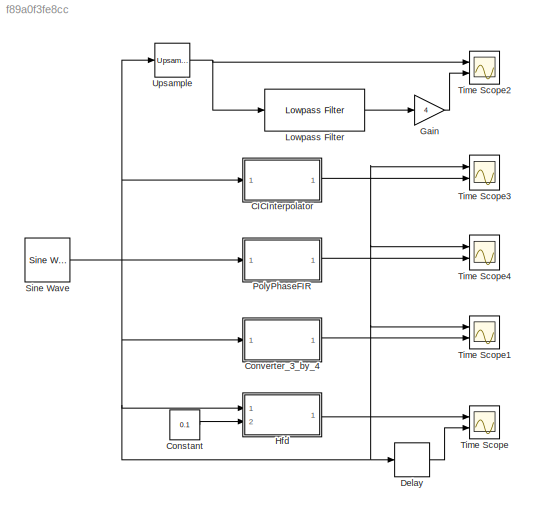
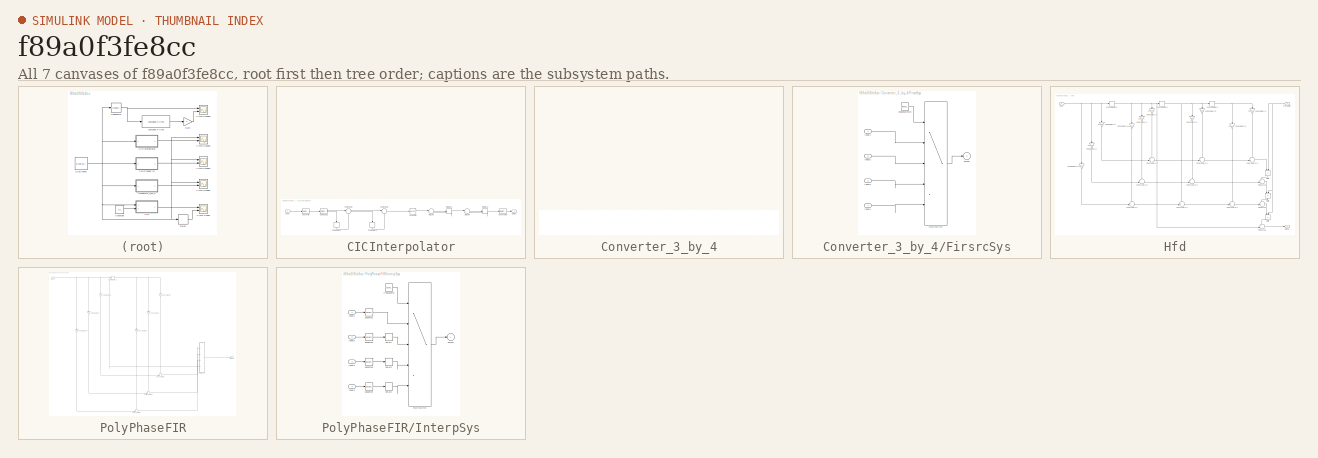
[diagram: thumbnail index - all 7 canvases of the model, root first then tree order]
MODEL slx_f89a0f3fe8cc
KIND model
CONFIG AbsTol = auto
CONFIG EnableMultiTasking = off
CONFIG FixedStep = auto
CONFIG MaxStep = auto
CONFIG MinStep = auto
CONFIG RelTol = 1e-3
CONFIG SampleTimeConstraint = Unconstrained
CONFIG Solver = VariableStepAuto
CONFIG SolverName = VariableStepAuto
CONFIG StartTime = 0.0
CONFIG StopTime = 5e-2
BLOCK [SubSystem] CICInterpolator
  ErrorFcn = dspFilterRealizedInBasicElemsAlgLoopErrFcnCallback
  Ports = [1, 1]
  RequestExecContextInheritance = off
  Tag = FilterWizardSubSystem
  UserDataPersistent = on
BLOCK [DataTypeConversion] CICInterpolator/CombCast2
  OutDataTypeStr = fixdt(1,17,15)
  RndMeth = Floor
  SaturateOnIntegerOverflow = off
BLOCK [Delay] CICInterpolator/CombDelay2
  DelayLength = 1
  InitialCondition = 0
  InputPortMap = u0
  NameLocation = right
  Ports = [1, 1]
BLOCK [Delay] CICInterpolator/CombDelay3
  DelayLength = 1
  InitialCondition = 0
  InputPortMap = u0
  NameLocation = right
  Ports = [1, 1]
BLOCK [Sum] CICInterpolator/CombSum2
  AccumDataTypeStr = fixdt(1,17,15)
  Inputs = |+-
  OutDataTypeStr = fixdt(1,17,15)
  Ports = [2, 1]
BLOCK [Sum] CICInterpolator/CombSum3
  AccumDataTypeStr = fixdt(1,17,15)
  Inputs = |+-
  OutDataTypeStr = fixdt(1,17,15)
  Ports = [2, 1]
BLOCK [DataTypeConversion] CICInterpolator/ConvertIn
  OutDataTypeStr = fixdt(1,16,15)
  RndMeth = Nearest
BLOCK [DataTypeConversion] CICInterpolator/ConvertOut
  OutDataTypeStr = fixdt(1,18,15)
  RndMeth = Floor
  SaturateOnIntegerOverflow = off
BLOCK [Inport] CICInterpolator/Input
BLOCK [Delay] CICInterpolator/IntDelay5
  DelayLength = 1
  InitialCondition = 0
  InputPortMap = u0
  Ports = [1, 1]
BLOCK [Delay] CICInterpolator/IntDelay6
  DelayLength = 1
  InitialCondition = 0
  InputPortMap = u0
  Ports = [1, 1]
BLOCK [Sum] CICInterpolator/IntSum5
  AccumDataTypeStr = fixdt(1,17,15)
  Inputs = |++
  OutDataTypeStr = fixdt(1,17,15)
  Ports = [2, 1]
BLOCK [Sum] CICInterpolator/IntSum6
  AccumDataTypeStr = fixdt(1,18,15)
  Inputs = |++
  OutDataTypeStr = fixdt(1,18,15)
  Ports = [2, 1]
BLOCK [Outport] CICInterpolator/Output
BLOCK [Reference] CICInterpolator/Up Sample  REF=dspsigops/Upsample
  Ports = [1, 1]
  SourceBlock = dspsigops/Upsample
  SourceProductBaseCode = DS
  SourceType = Upsample
  UserDataPersistent = on
BLOCK [Constant] Constant
  Value = 0.1
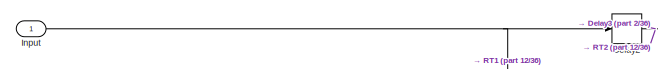
[diagram: Converter_3_by_4 - part 1/36, top left region]
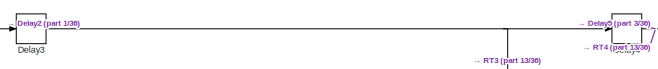
[diagram: Converter_3_by_4 - part 2/36, top left region]
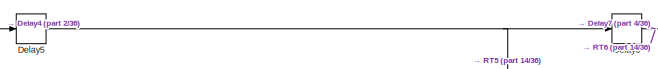
[diagram: Converter_3_by_4 - part 3/36, top left region]
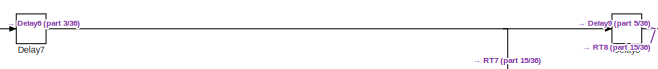
[diagram: Converter_3_by_4 - part 4/36, top left region]
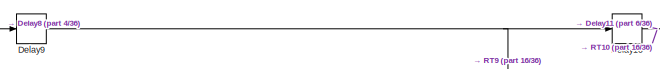
[diagram: Converter_3_by_4 - part 5/36, top center region]
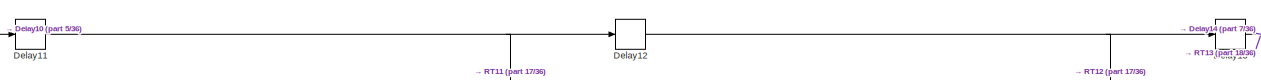
[diagram: Converter_3_by_4 - part 6/36, top center region]
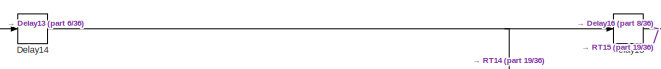
[diagram: Converter_3_by_4 - part 7/36, top center region]
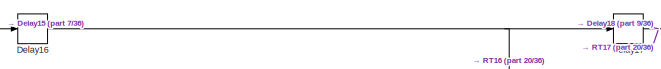
[diagram: Converter_3_by_4 - part 8/36, top center region]
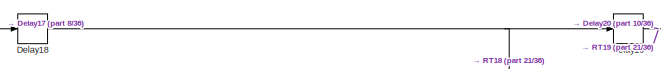
[diagram: Converter_3_by_4 - part 9/36, top right region]
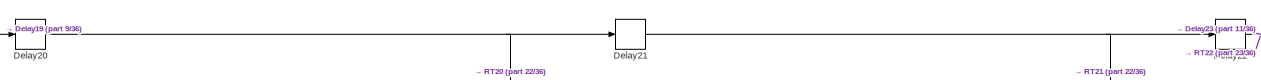
[diagram: Converter_3_by_4 - part 10/36, top right region]
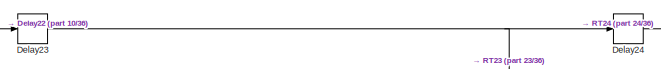
[diagram: Converter_3_by_4 - part 11/36, top right region]
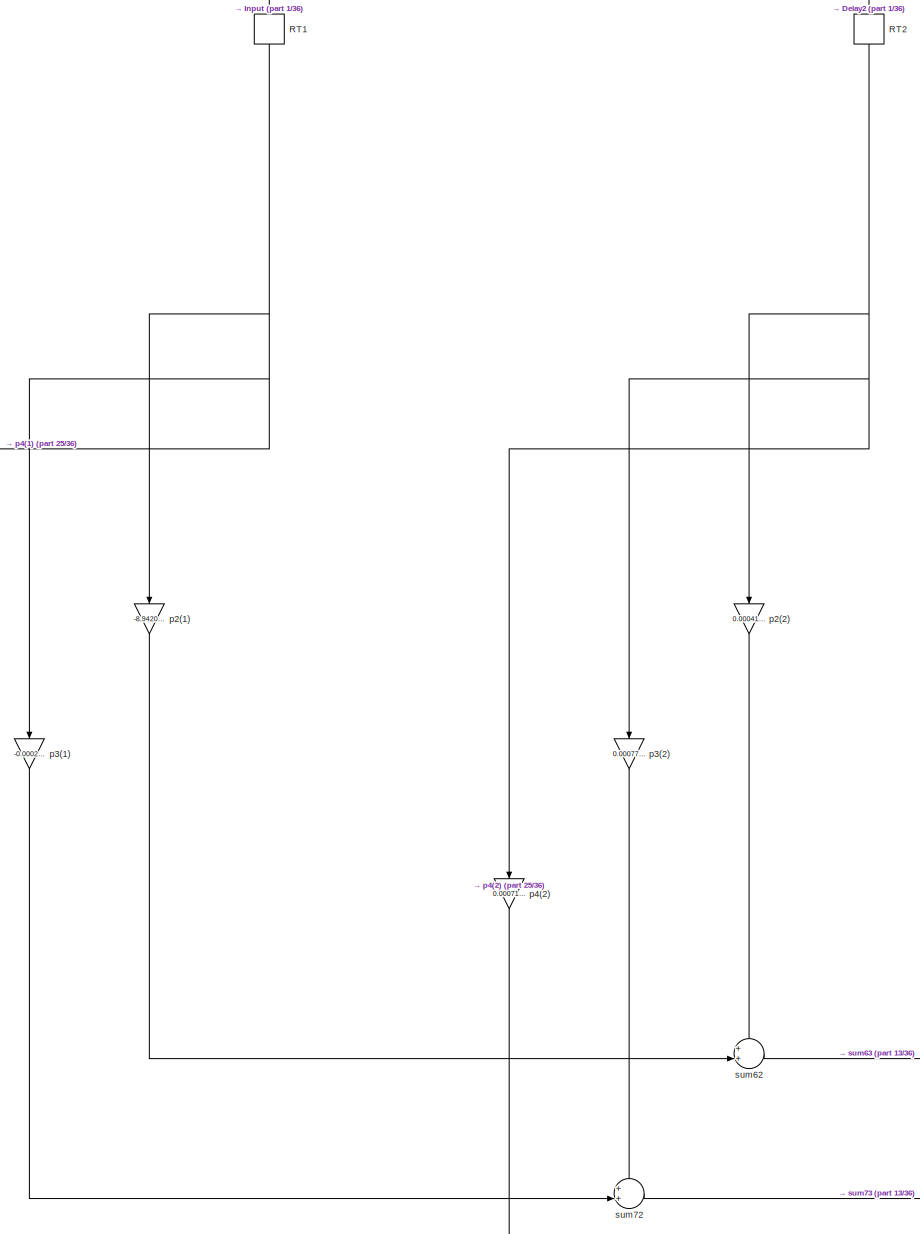
[diagram: Converter_3_by_4 - part 12/36, left side, full height]
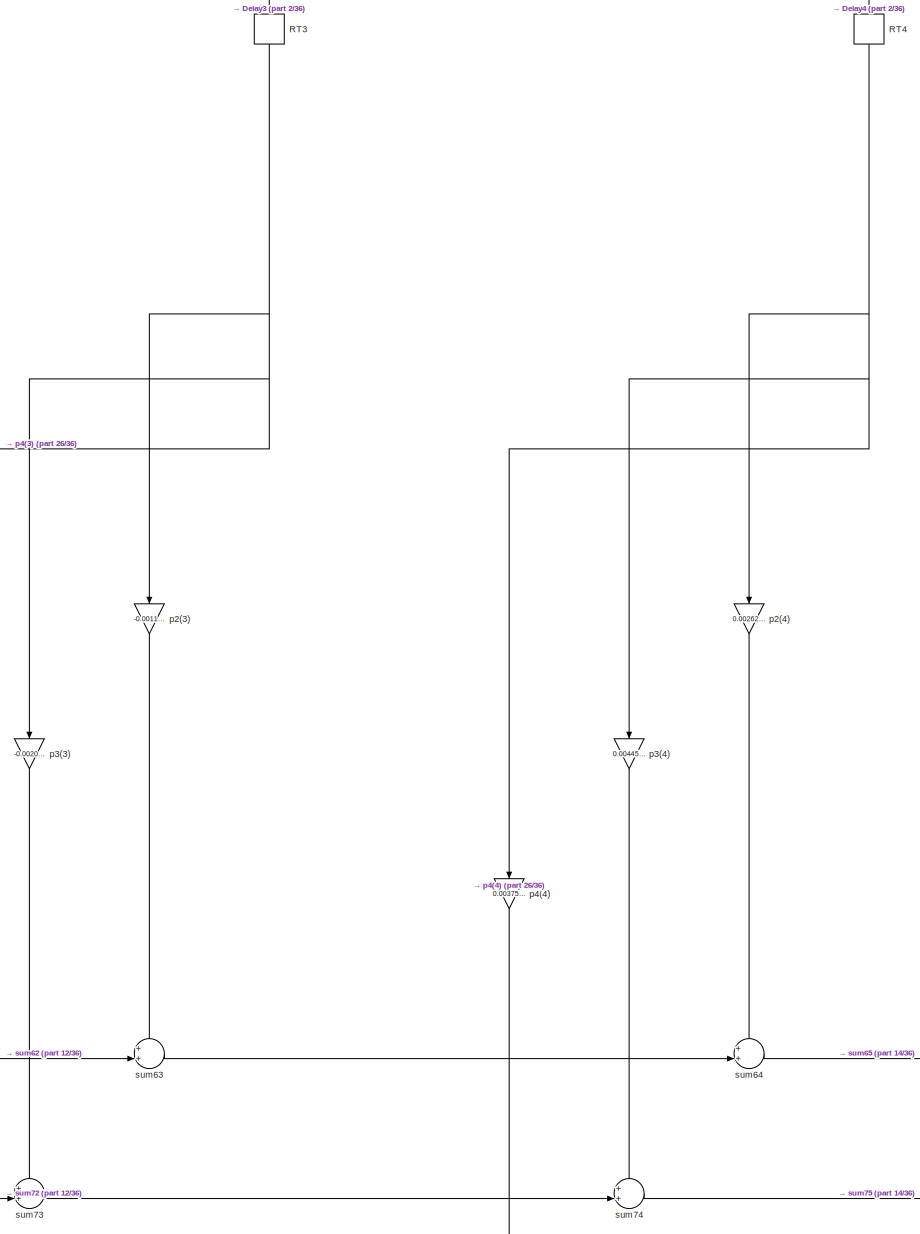
[diagram: Converter_3_by_4 - part 13/36, left side, full height]
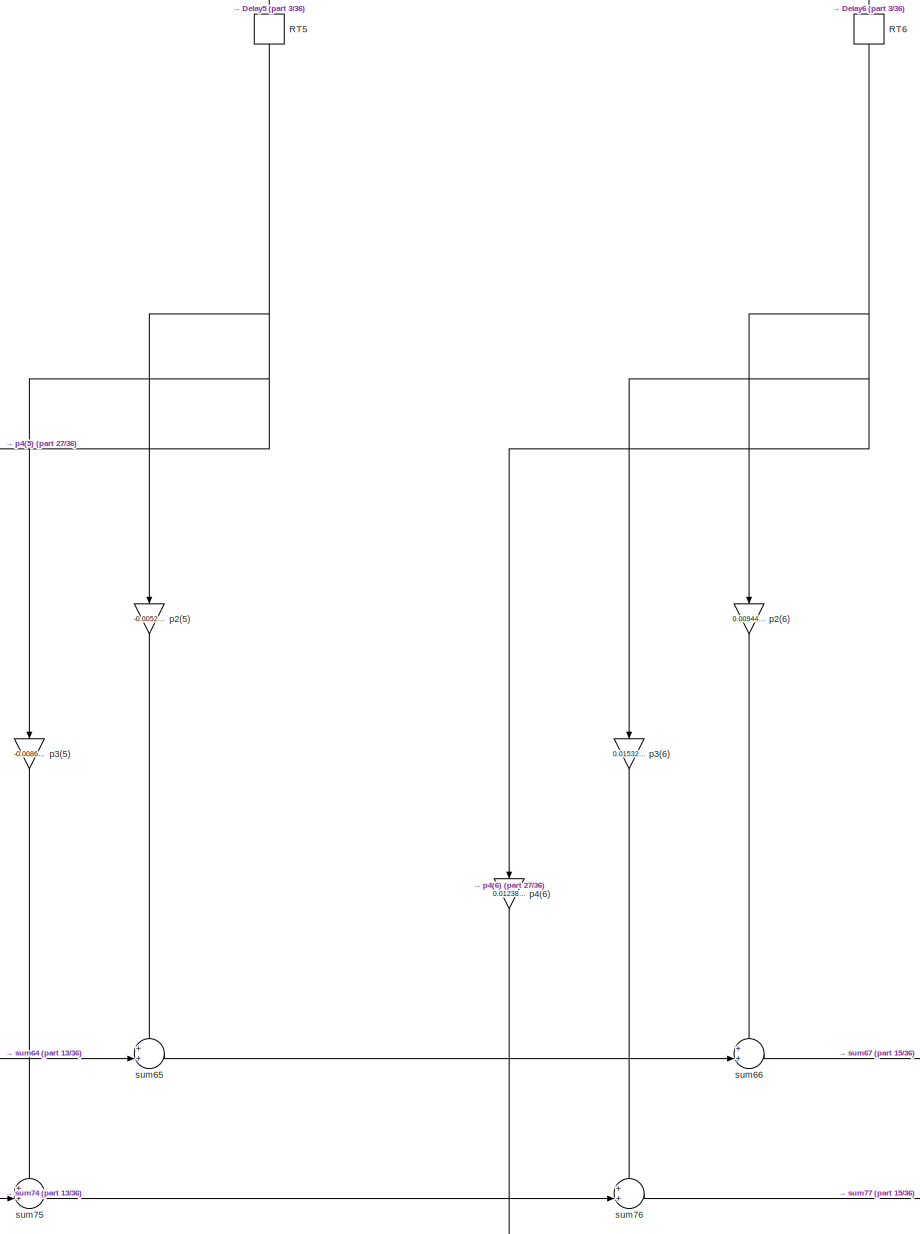
[diagram: Converter_3_by_4 - part 14/36, left side, full height]
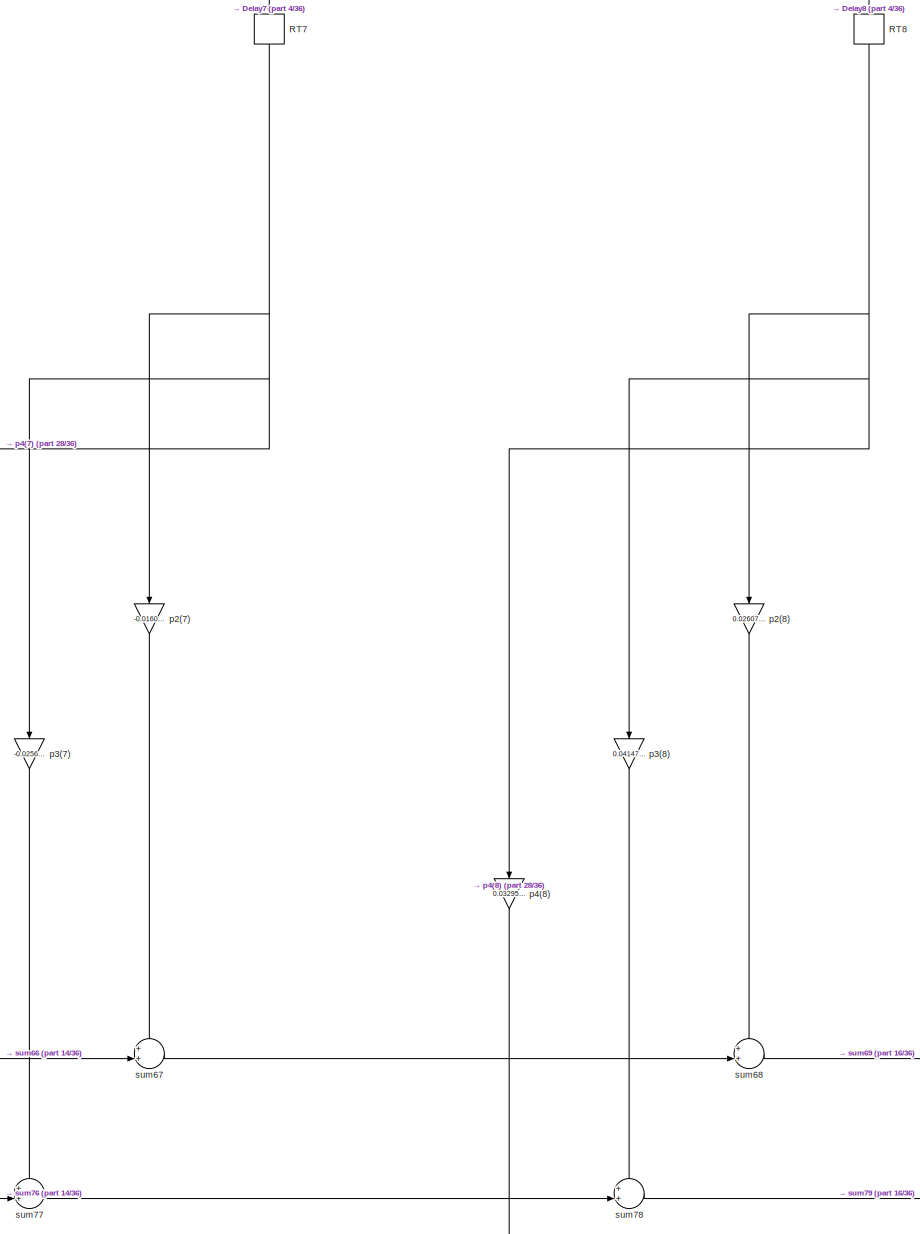
[diagram: Converter_3_by_4 - part 15/36, left side, full height]
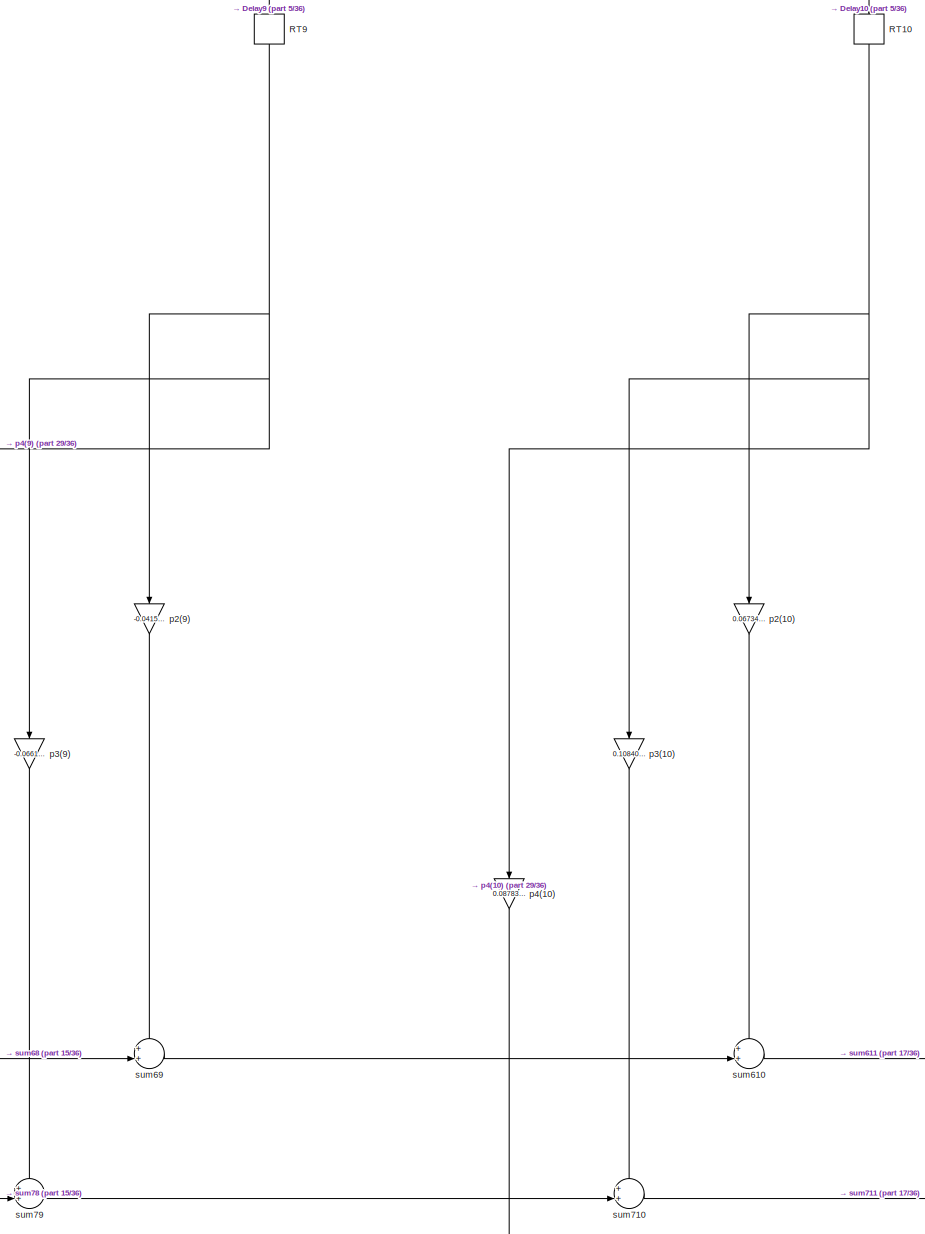
[diagram: Converter_3_by_4 - part 16/36, center side, full height]
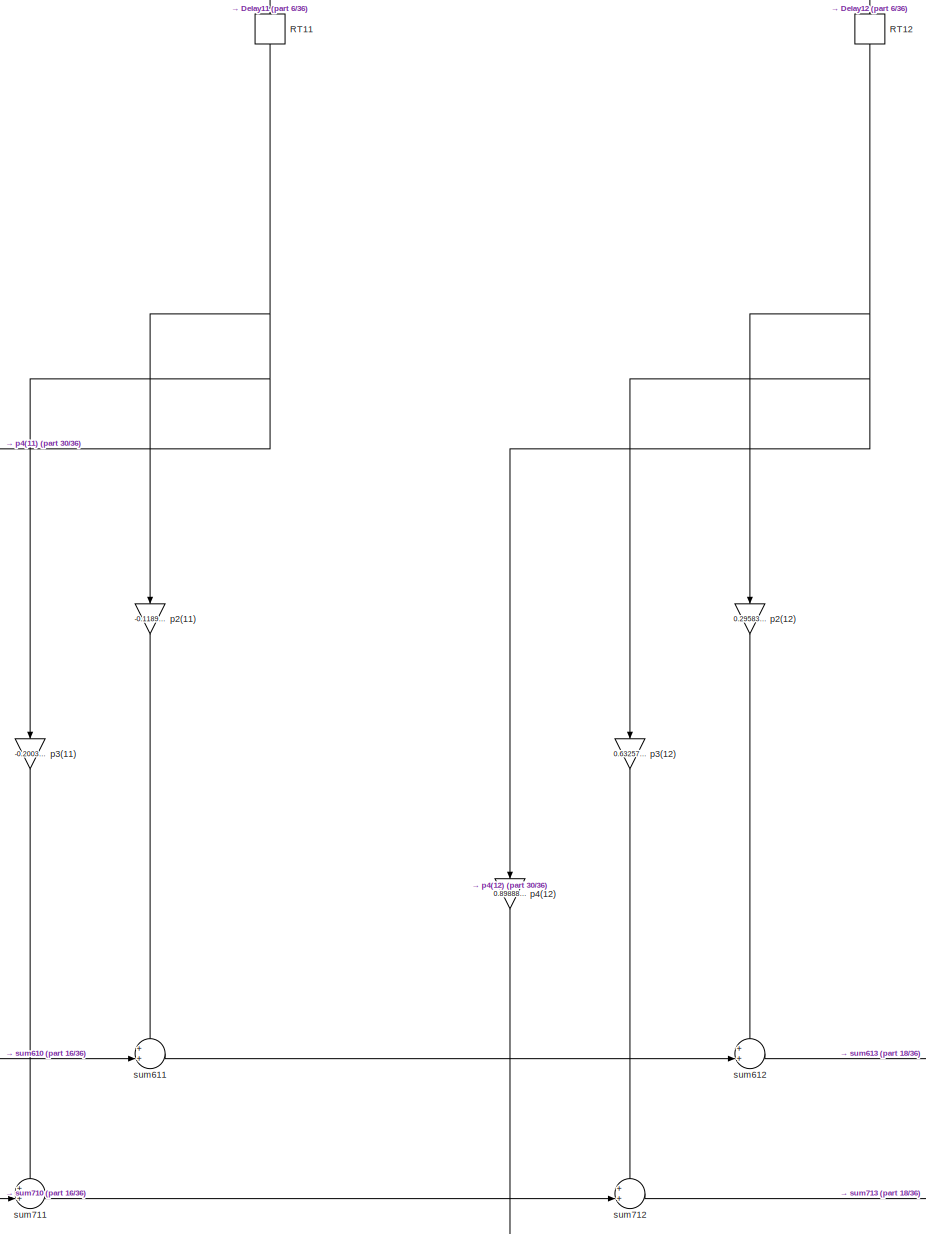
[diagram: Converter_3_by_4 - part 17/36, center side, full height]
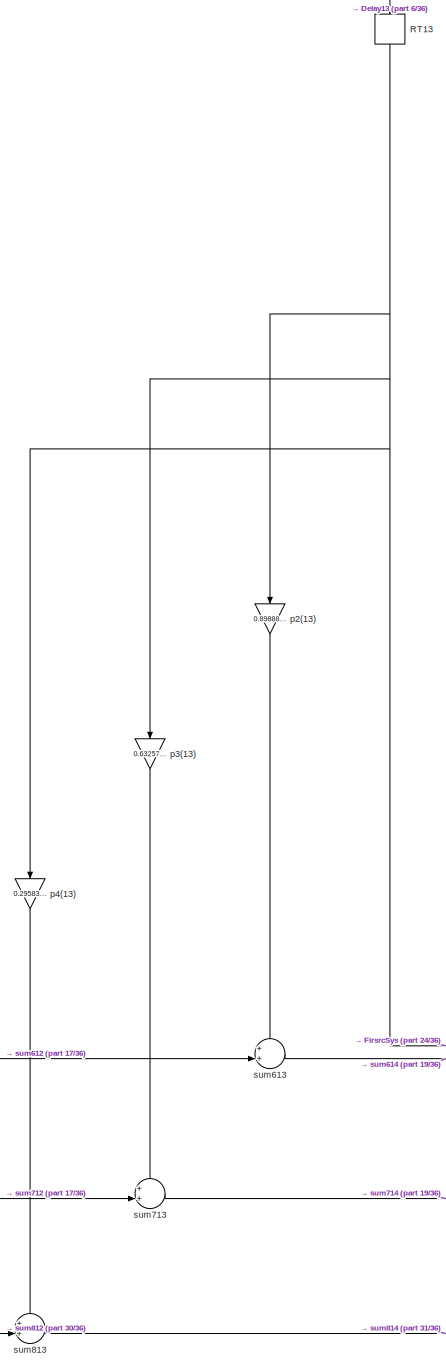
[diagram: Converter_3_by_4 - part 18/36, center side, full height]
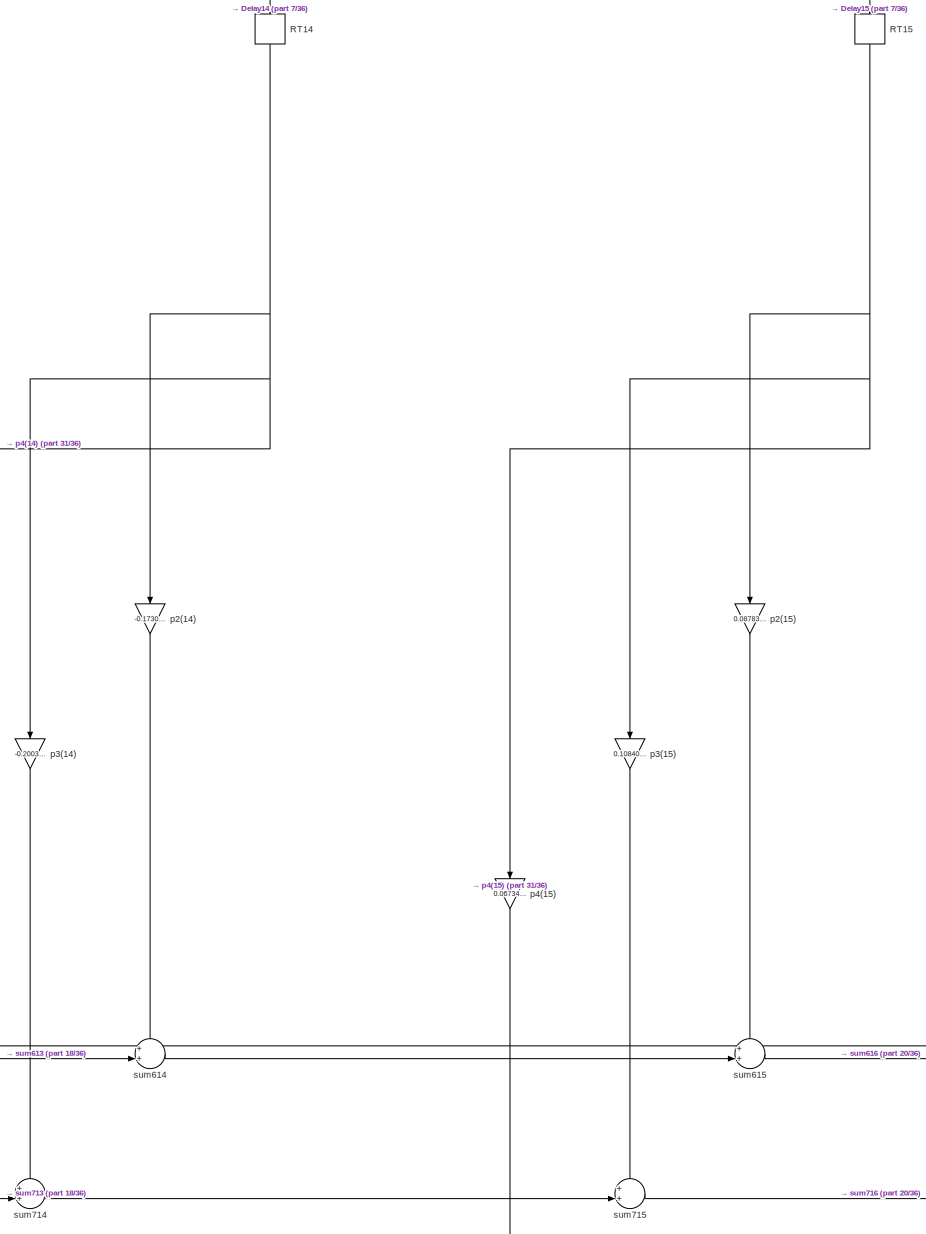
[diagram: Converter_3_by_4 - part 19/36, center side, full height]
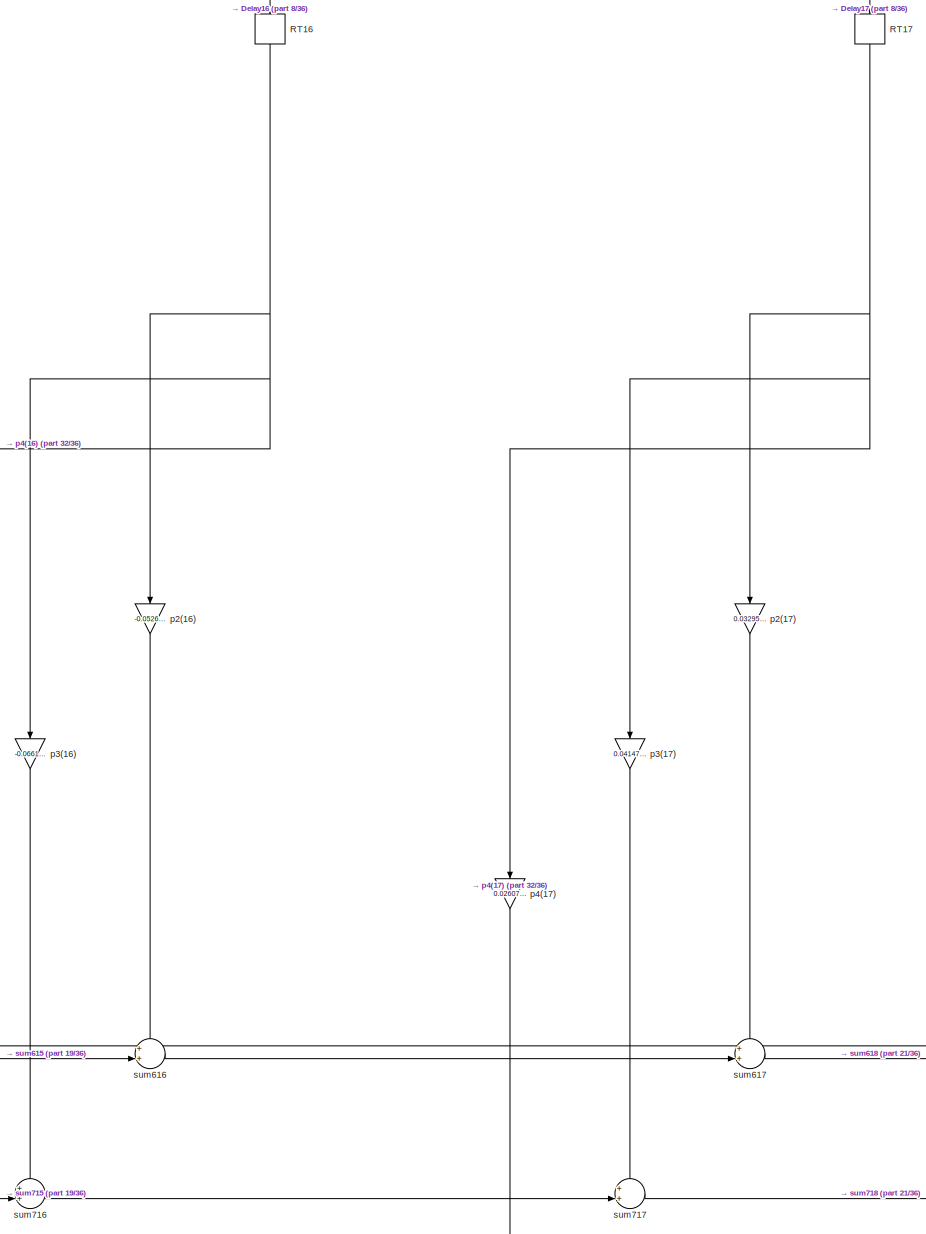
[diagram: Converter_3_by_4 - part 20/36, center side, full height]
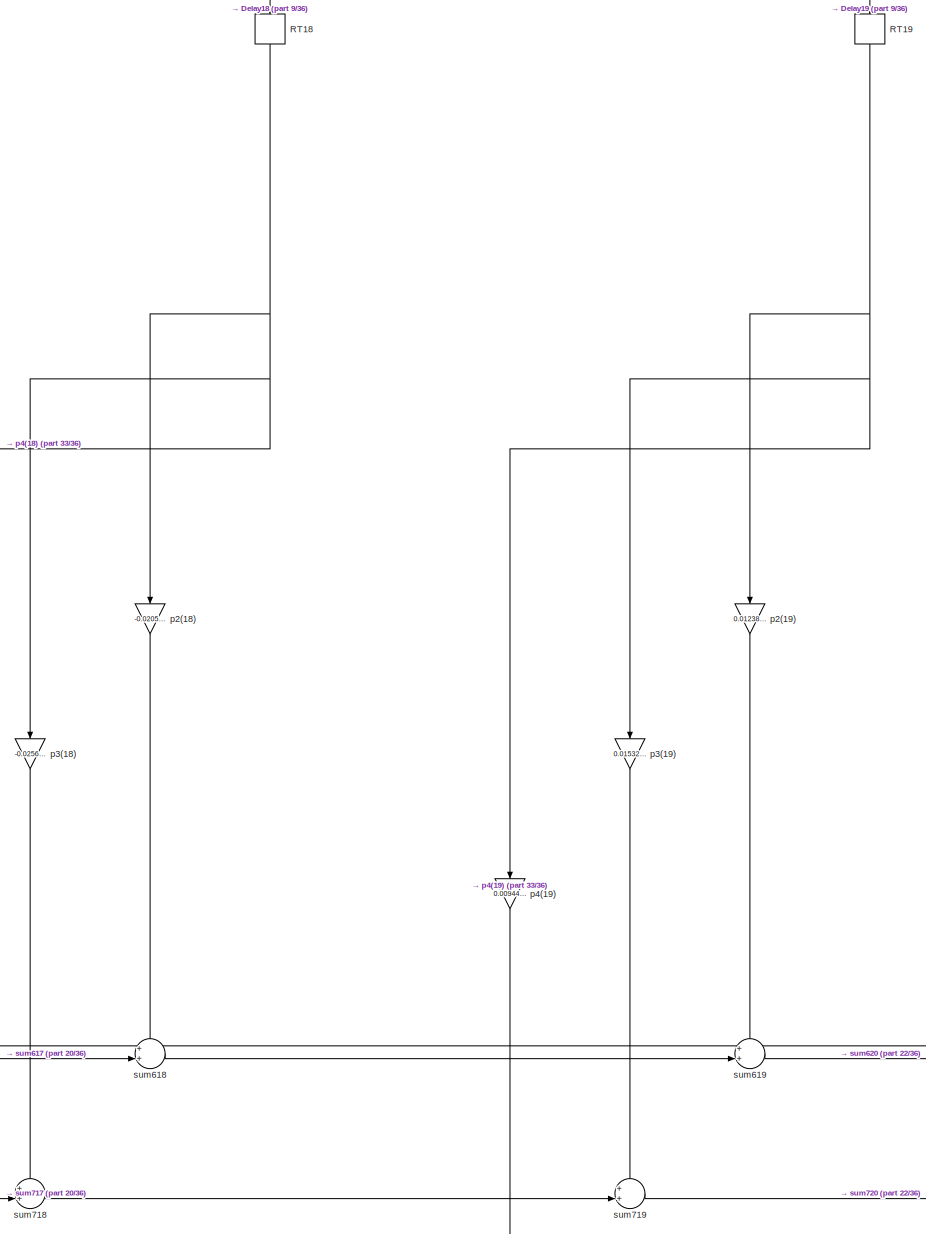
[diagram: Converter_3_by_4 - part 21/36, right side, full height]
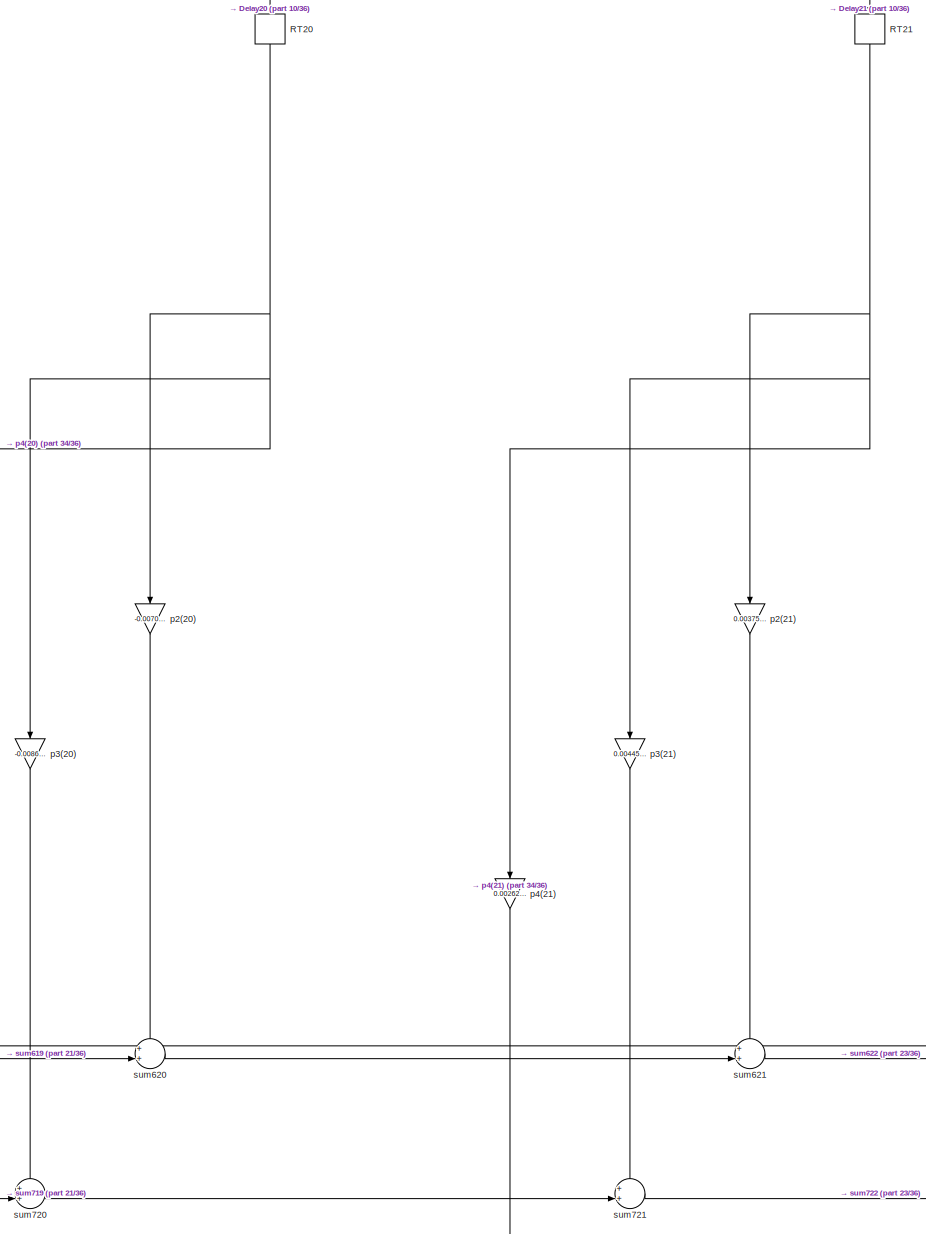
[diagram: Converter_3_by_4 - part 22/36, right side, full height]
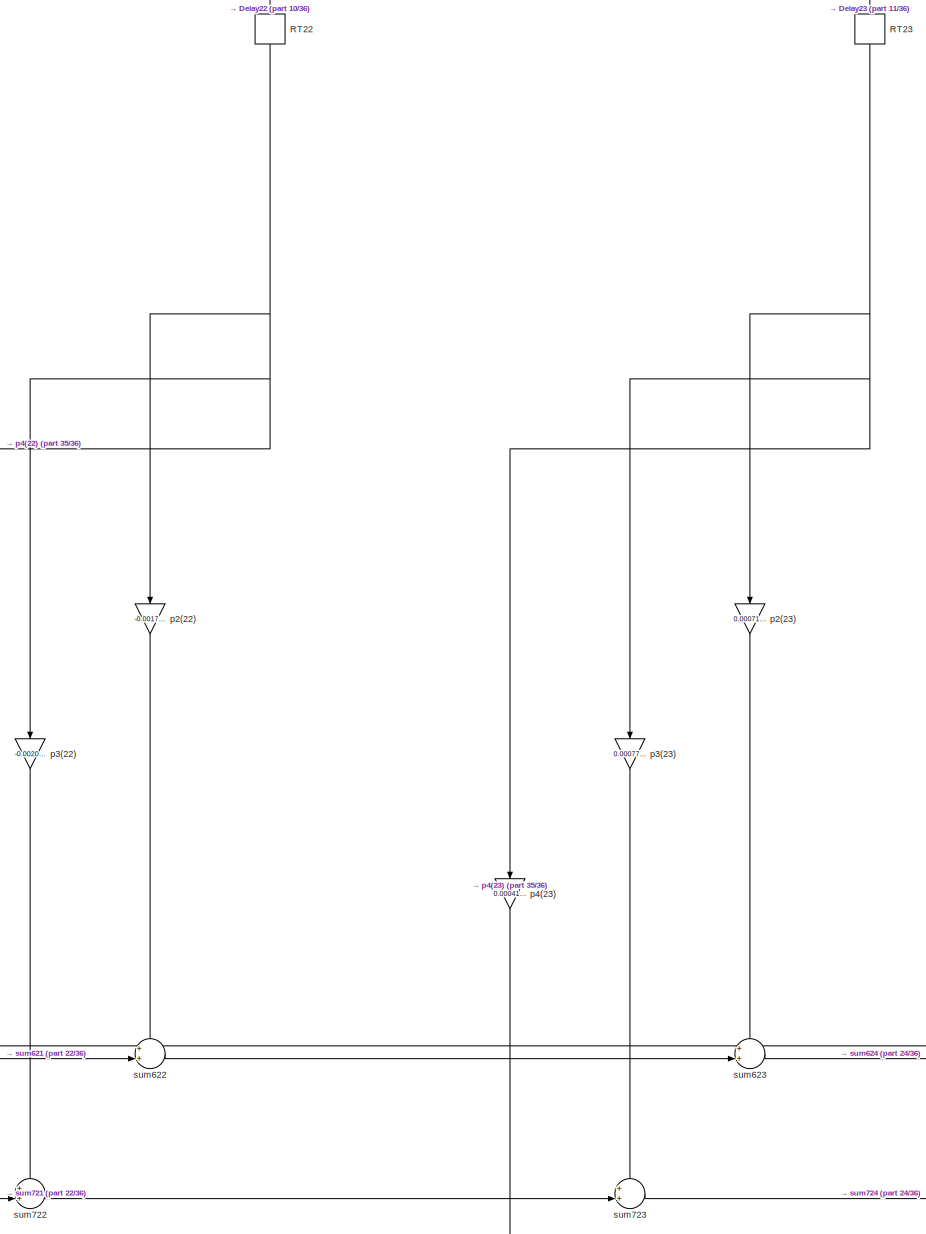
[diagram: Converter_3_by_4 - part 23/36, right side, full height]
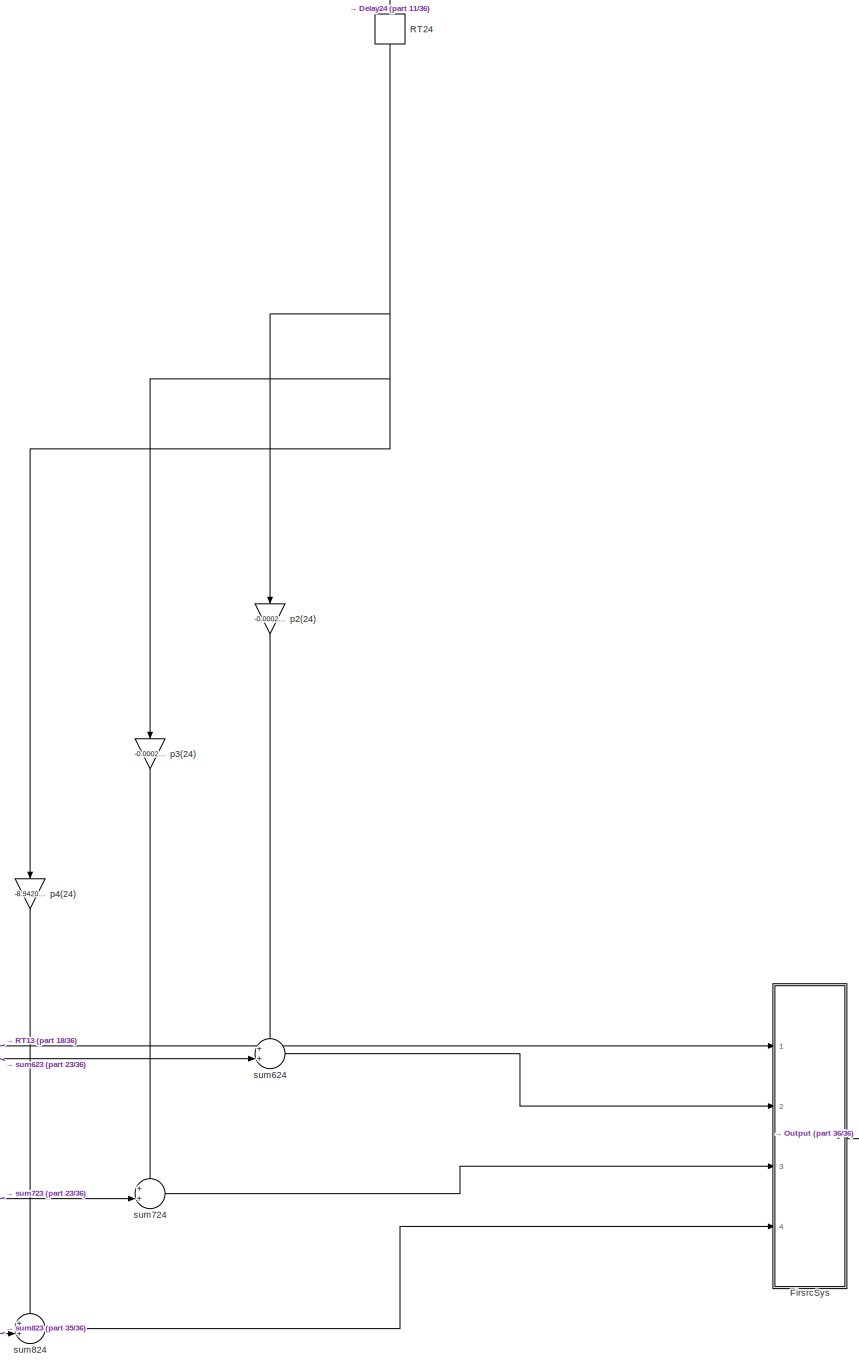
[diagram: Converter_3_by_4 - part 24/36, right side, full height]
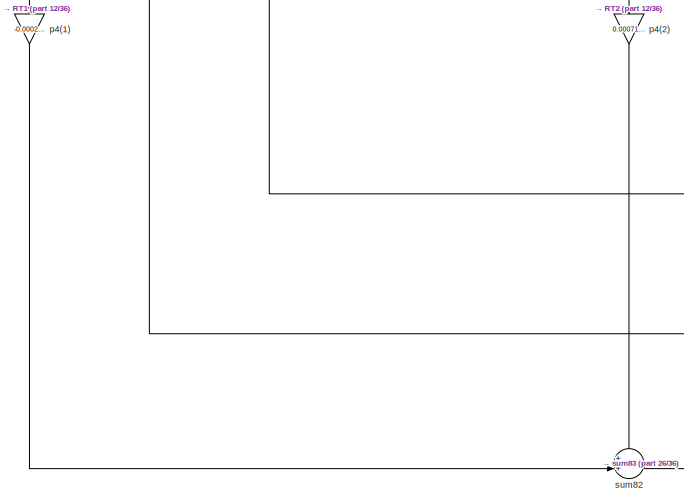
[diagram: Converter_3_by_4 - part 25/36, bottom left region]
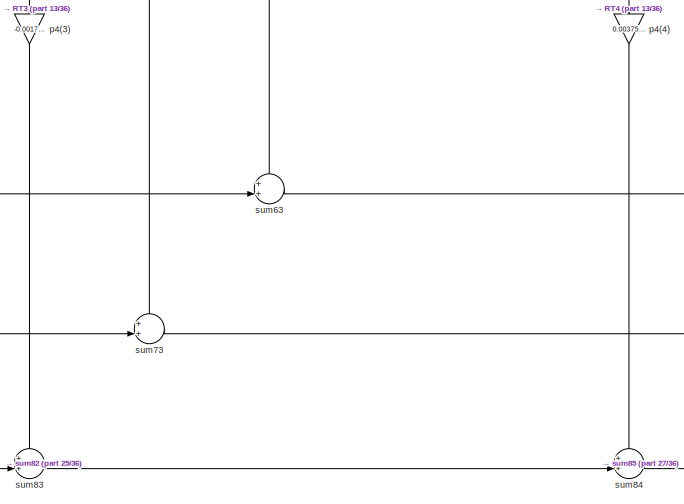
[diagram: Converter_3_by_4 - part 26/36, bottom left region]
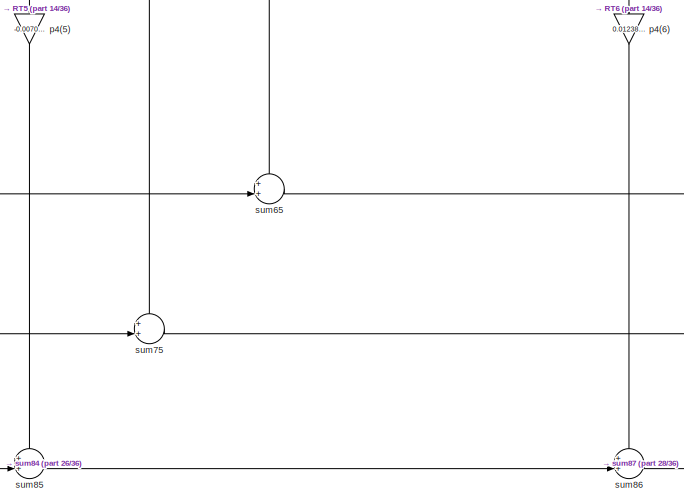
[diagram: Converter_3_by_4 - part 27/36, bottom left region]
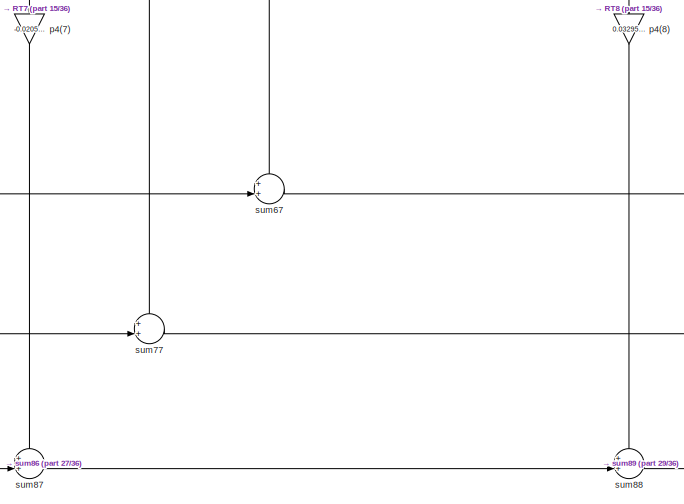
[diagram: Converter_3_by_4 - part 28/36, bottom left region]
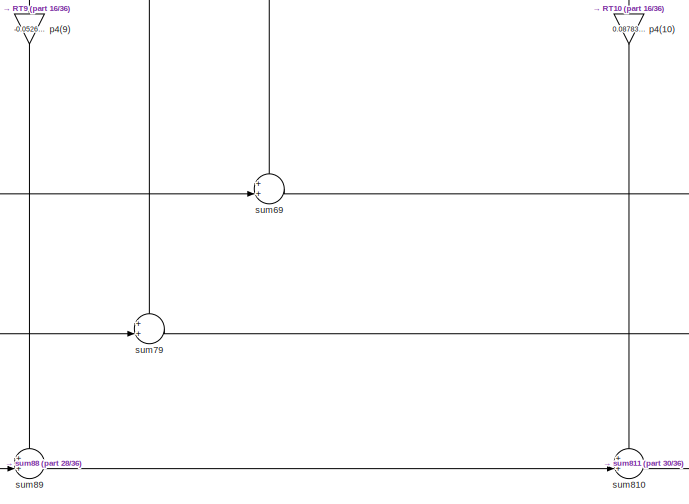
[diagram: Converter_3_by_4 - part 29/36, bottom center region]
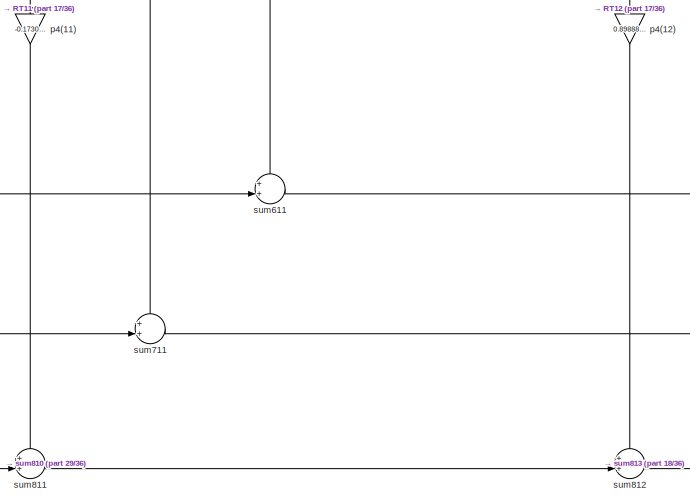
[diagram: Converter_3_by_4 - part 30/36, bottom center region]
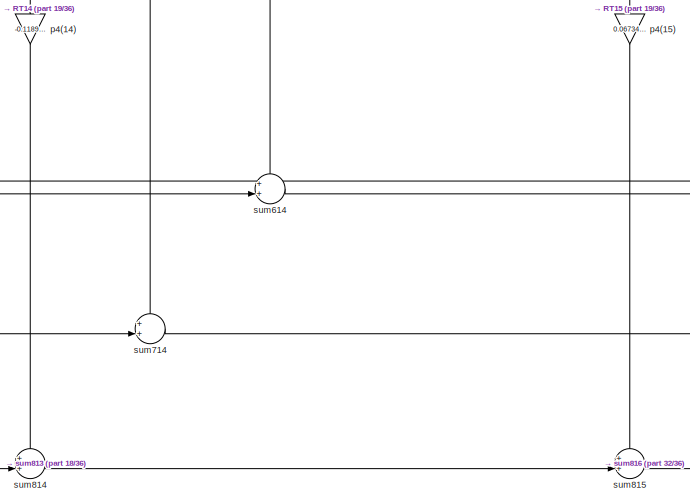
[diagram: Converter_3_by_4 - part 31/36, bottom center region]
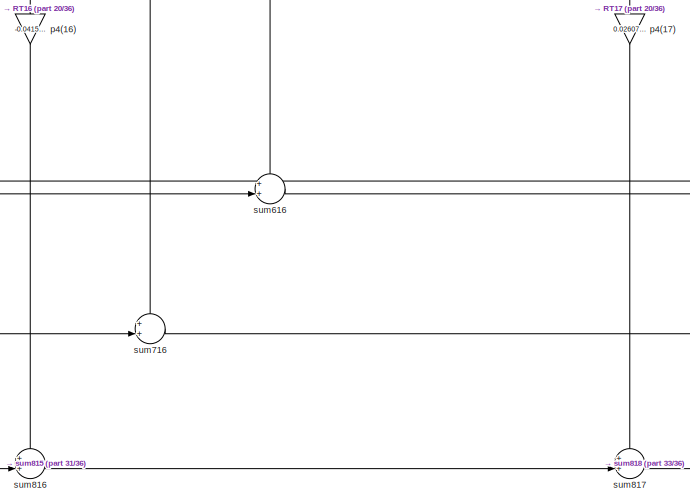
[diagram: Converter_3_by_4 - part 32/36, bottom center region]
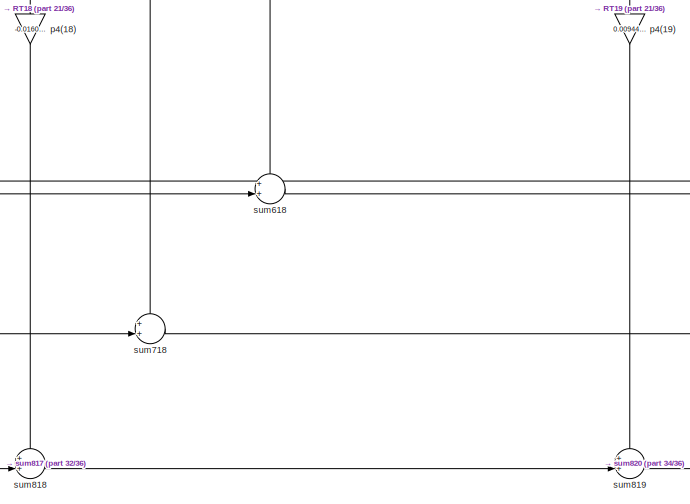
[diagram: Converter_3_by_4 - part 33/36, bottom right region]
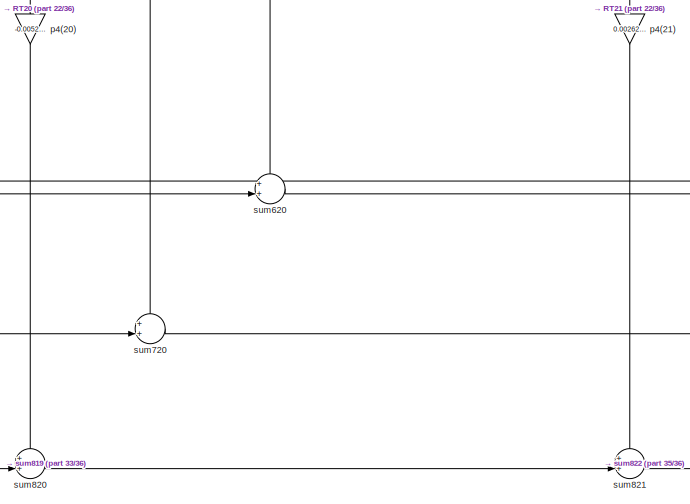
[diagram: Converter_3_by_4 - part 34/36, bottom right region]
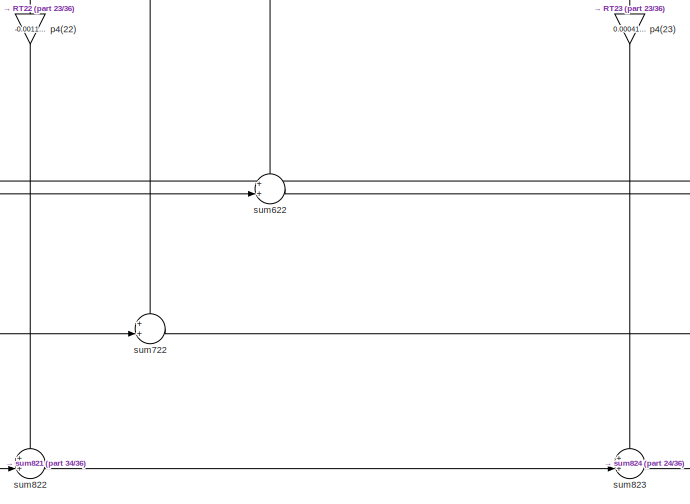
[diagram: Converter_3_by_4 - part 35/36, bottom right region]
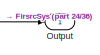
[diagram: Converter_3_by_4 - part 36/36, bottom right region]
BLOCK [SubSystem] Converter_3_by_4
  ErrorFcn = dspFilterRealizedInBasicElemsAlgLoopErrFcnCallback
  Ports = [1, 1]
  RequestExecContextInheritance = off
  Tag = FilterWizardSubSystem
  UserDataPersistent = on
BLOCK [Delay] Converter_3_by_4/Delay10
  DelayLength = 1
  InitialCondition = 0
  InputPortMap = u0
  Ports = [1, 1]
BLOCK [Delay] Converter_3_by_4/Delay11
  DelayLength = 1
  InitialCondition = 0
  InputPortMap = u0
  Ports = [1, 1]
BLOCK [Delay] Converter_3_by_4/Delay12
  DelayLength = 1
  InitialCondition = 0
  InputPortMap = u0
  Ports = [1, 1]
BLOCK [Delay] Converter_3_by_4/Delay13
  DelayLength = 1
  InitialCondition = 0
  InputPortMap = u0
  Ports = [1, 1]
BLOCK [Delay] Converter_3_by_4/Delay14
  DelayLength = 1
  InitialCondition = 0
  InputPortMap = u0
  Ports = [1, 1]
BLOCK [Delay] Converter_3_by_4/Delay15
  DelayLength = 1
  InitialCondition = 0
  InputPortMap = u0
  Ports = [1, 1]
BLOCK [Delay] Converter_3_by_4/Delay16
  DelayLength = 1
  InitialCondition = 0
  InputPortMap = u0
  Ports = [1, 1]
BLOCK [Delay] Converter_3_by_4/Delay17
  DelayLength = 1
  InitialCondition = 0
  InputPortMap = u0
  Ports = [1, 1]
BLOCK [Delay] Converter_3_by_4/Delay18
  DelayLength = 1
  InitialCondition = 0
  InputPortMap = u0
  Ports = [1, 1]
BLOCK [Delay] Converter_3_by_4/Delay19
  DelayLength = 1
  InitialCondition = 0
  InputPortMap = u0
  Ports = [1, 1]
BLOCK [Delay] Converter_3_by_4/Delay2
  DelayLength = 1
  InitialCondition = 0
  InputPortMap = u0
  Ports = [1, 1]
BLOCK [Delay] Converter_3_by_4/Delay20
  DelayLength = 1
  InitialCondition = 0
  InputPortMap = u0
  Ports = [1, 1]
BLOCK [Delay] Converter_3_by_4/Delay21
  DelayLength = 1
  InitialCondition = 0
  InputPortMap = u0
  Ports = [1, 1]
BLOCK [Delay] Converter_3_by_4/Delay22
  DelayLength = 1
  InitialCondition = 0
  InputPortMap = u0
  Ports = [1, 1]
BLOCK [Delay] Converter_3_by_4/Delay23
  DelayLength = 1
  InitialCondition = 0
  InputPortMap = u0
  Ports = [1, 1]
BLOCK [Delay] Converter_3_by_4/Delay24
  DelayLength = 1
  InitialCondition = 0
  InputPortMap = u0
  Ports = [1, 1]
BLOCK [Delay] Converter_3_by_4/Delay3
  DelayLength = 1
  InitialCondition = 0
  InputPortMap = u0
  Ports = [1, 1]
BLOCK [Delay] Converter_3_by_4/Delay4
  DelayLength = 1
  InitialCondition = 0
  InputPortMap = u0
  Ports = [1, 1]
BLOCK [Delay] Converter_3_by_4/Delay5
  DelayLength = 1
  InitialCondition = 0
  InputPortMap = u0
  Ports = [1, 1]
BLOCK [Delay] Converter_3_by_4/Delay6
  DelayLength = 1
  InitialCondition = 0
  InputPortMap = u0
  Ports = [1, 1]
BLOCK [Delay] Converter_3_by_4/Delay7
  DelayLength = 1
  InitialCondition = 0
  InputPortMap = u0
  Ports = [1, 1]
BLOCK [Delay] Converter_3_by_4/Delay8
  DelayLength = 1
  InitialCondition = 0
  InputPortMap = u0
  Ports = [1, 1]
BLOCK [Delay] Converter_3_by_4/Delay9
  DelayLength = 1
  InitialCondition = 0
  InputPortMap = u0
  Ports = [1, 1]
BLOCK [SubSystem] Converter_3_by_4/FirsrcSys
  Ports = [4, 1]
  RequestExecContextInheritance = off
  Tag = FilterWizardSampleRateConverterCommutator
BLOCK [Inport] Converter_3_by_4/FirsrcSys/input1
BLOCK [Inport] Converter_3_by_4/FirsrcSys/input2
  Port = 2
BLOCK [Inport] Converter_3_by_4/FirsrcSys/input3
  Port = 3
BLOCK [Inport] Converter_3_by_4/FirsrcSys/input4
  Port = 4
BLOCK [MultiPortSwitch] Converter_3_by_4/FirsrcSys/multiswitch
  DataPortOrder = Zero-based contiguous
  InputSameDT = off
  Inputs = 4
  Ports = [5, 1]
  zeroidx = on
BLOCK [Outport] Converter_3_by_4/FirsrcSys/output
BLOCK [Reference] Converter_3_by_4/FirsrcSys/phaseselector  REF=simulink/Sources/Repeating
Sequence
Stair
  Ports = [0, 1]
  SourceBlock = simulink/Sources/Repeating\nSequence\nStair
  SourceProductBaseCode = SL
  SourceType = Repeating Sequence Stair
BLOCK [Inport] Converter_3_by_4/Input
BLOCK [Outport] Converter_3_by_4/Output
BLOCK [RateTransition] Converter_3_by_4/RT1
  Deterministic = off
  Integrity = off
  NameLocation = right
  OutPortSampleTimeMultiple = 3/4
  OutPortSampleTimeOpt = Multiple of input port sample time
BLOCK [RateTransition] Converter_3_by_4/RT10
  Deterministic = off
  Integrity = off
  NameLocation = right
  OutPortSampleTimeMultiple = 3/4
  OutPortSampleTimeOpt = Multiple of input port sample time
BLOCK [RateTransition] Converter_3_by_4/RT11
  Deterministic = off
  Integrity = off
  NameLocation = right
  OutPortSampleTimeMultiple = 3/4
  OutPortSampleTimeOpt = Multiple of input port sample time
BLOCK [RateTransition] Converter_3_by_4/RT12
  Deterministic = off
  Integrity = off
  NameLocation = right
  OutPortSampleTimeMultiple = 3/4
  OutPortSampleTimeOpt = Multiple of input port sample time
BLOCK [RateTransition] Converter_3_by_4/RT13
  Deterministic = off
  Integrity = off
  NameLocation = right
  OutPortSampleTimeMultiple = 3/4
  OutPortSampleTimeOpt = Multiple of input port sample time
BLOCK [RateTransition] Converter_3_by_4/RT14
  Deterministic = off
  Integrity = off
  NameLocation = right
  OutPortSampleTimeMultiple = 3/4
  OutPortSampleTimeOpt = Multiple of input port sample time
BLOCK [RateTransition] Converter_3_by_4/RT15
  Deterministic = off
  Integrity = off
  NameLocation = right
  OutPortSampleTimeMultiple = 3/4
  OutPortSampleTimeOpt = Multiple of input port sample time
BLOCK [RateTransition] Converter_3_by_4/RT16
  Deterministic = off
  Integrity = off
  NameLocation = right
  OutPortSampleTimeMultiple = 3/4
  OutPortSampleTimeOpt = Multiple of input port sample time
BLOCK [RateTransition] Converter_3_by_4/RT17
  Deterministic = off
  Integrity = off
  NameLocation = right
  OutPortSampleTimeMultiple = 3/4
  OutPortSampleTimeOpt = Multiple of input port sample time
BLOCK [RateTransition] Converter_3_by_4/RT18
  Deterministic = off
  Integrity = off
  NameLocation = right
  OutPortSampleTimeMultiple = 3/4
  OutPortSampleTimeOpt = Multiple of input port sample time
BLOCK [RateTransition] Converter_3_by_4/RT19
  Deterministic = off
  Integrity = off
  NameLocation = right
  OutPortSampleTimeMultiple = 3/4
  OutPortSampleTimeOpt = Multiple of input port sample time
BLOCK [RateTransition] Converter_3_by_4/RT2
  Deterministic = off
  Integrity = off
  NameLocation = right
  OutPortSampleTimeMultiple = 3/4
  OutPortSampleTimeOpt = Multiple of input port sample time
BLOCK [RateTransition] Converter_3_by_4/RT20
  Deterministic = off
  Integrity = off
  NameLocation = right
  OutPortSampleTimeMultiple = 3/4
  OutPortSampleTimeOpt = Multiple of input port sample time
BLOCK [RateTransition] Converter_3_by_4/RT21
  Deterministic = off
  Integrity = off
  NameLocation = right
  OutPortSampleTimeMultiple = 3/4
  OutPortSampleTimeOpt = Multiple of input port sample time
BLOCK [RateTransition] Converter_3_by_4/RT22
  Deterministic = off
  Integrity = off
  NameLocation = right
  OutPortSampleTimeMultiple = 3/4
  OutPortSampleTimeOpt = Multiple of input port sample time
BLOCK [RateTransition] Converter_3_by_4/RT23
  Deterministic = off
  Integrity = off
  NameLocation = right
  OutPortSampleTimeMultiple = 3/4
  OutPortSampleTimeOpt = Multiple of input port sample time
BLOCK [RateTransition] Converter_3_by_4/RT24
  Deterministic = off
  Integrity = off
  NameLocation = right
  OutPortSampleTimeMultiple = 3/4
  OutPortSampleTimeOpt = Multiple of input port sample time
BLOCK [RateTransition] Converter_3_by_4/RT3
  Deterministic = off
  Integrity = off
  NameLocation = right
  OutPortSampleTimeMultiple = 3/4
  OutPortSampleTimeOpt = Multiple of input port sample time
BLOCK [RateTransition] Converter_3_by_4/RT4
  Deterministic = off
  Integrity = off
  NameLocation = right
  OutPortSampleTimeMultiple = 3/4
  OutPortSampleTimeOpt = Multiple of input port sample time
BLOCK [RateTransition] Converter_3_by_4/RT5
  Deterministic = off
  Integrity = off
  NameLocation = right
  OutPortSampleTimeMultiple = 3/4
  OutPortSampleTimeOpt = Multiple of input port sample time
BLOCK [RateTransition] Converter_3_by_4/RT6
  Deterministic = off
  Integrity = off
  NameLocation = right
  OutPortSampleTimeMultiple = 3/4
  OutPortSampleTimeOpt = Multiple of input port sample time
BLOCK [RateTransition] Converter_3_by_4/RT7
  Deterministic = off
  Integrity = off
  NameLocation = right
  OutPortSampleTimeMultiple = 3/4
  OutPortSampleTimeOpt = Multiple of input port sample time
BLOCK [RateTransition] Converter_3_by_4/RT8
  Deterministic = off
  Integrity = off
  NameLocation = right
  OutPortSampleTimeMultiple = 3/4
  OutPortSampleTimeOpt = Multiple of input port sample time
BLOCK [RateTransition] Converter_3_by_4/RT9
  Deterministic = off
  Integrity = off
  NameLocation = right
  OutPortSampleTimeMultiple = 3/4
  OutPortSampleTimeOpt = Multiple of input port sample time
BLOCK [Gain] Converter_3_by_4/p2(1)
  Gain = -8.94209312709779976e-05
  NameLocation = right
  OutDataTypeStr = Inherit: Same as input
  ParamDataTypeStr = double
  RndMeth = Nearest
  SaturateOnIntegerOverflow = on
BLOCK [Gain] Converter_3_by_4/p2(10)
  Gain = 0.0673410868786561423
  NameLocation = right
  OutDataTypeStr = Inherit: Same as input
  ParamDataTypeStr = double
  RndMeth = Nearest
  SaturateOnIntegerOverflow = on
BLOCK [Gain] Converter_3_by_4/p2(11)
  Gain = -0.118916504347217039
  NameLocation = right
  OutDataTypeStr = Inherit: Same as input
  ParamDataTypeStr = double
  RndMeth = Nearest
  SaturateOnIntegerOverflow = on
BLOCK [Gain] Converter_3_by_4/p2(12)
  Gain = 0.295831354115615619
  NameLocation = right
  OutDataTypeStr = Inherit: Same as input
  ParamDataTypeStr = double
  RndMeth = Nearest
  SaturateOnIntegerOverflow = on
BLOCK [Gain] Converter_3_by_4/p2(13)
  Gain = 0.898883674956074352
  NameLocation = right
  OutDataTypeStr = Inherit: Same as input
  ParamDataTypeStr = double
  RndMeth = Nearest
  SaturateOnIntegerOverflow = on
BLOCK [Gain] Converter_3_by_4/p2(14)
  Gain = -0.173018480143057568
  NameLocation = right
  OutDataTypeStr = Inherit: Same as input
  ParamDataTypeStr = double
  RndMeth = Nearest
  SaturateOnIntegerOverflow = on
BLOCK [Gain] Converter_3_by_4/p2(15)
  Gain = 0.0878360099387300586
  NameLocation = right
  OutDataTypeStr = Inherit: Same as input
  ParamDataTypeStr = double
  RndMeth = Nearest
  SaturateOnIntegerOverflow = on
BLOCK [Gain] Converter_3_by_4/p2(16)
  Gain = -0.0526648923165617677
  NameLocation = right
  OutDataTypeStr = Inherit: Same as input
  ParamDataTypeStr = double
  RndMeth = Nearest
  SaturateOnIntegerOverflow = on
BLOCK [Gain] Converter_3_by_4/p2(17)
  Gain = 0.0329540171313132749
  NameLocation = right
  OutDataTypeStr = Inherit: Same as input
  ParamDataTypeStr = double
  RndMeth = Nearest
  SaturateOnIntegerOverflow = on
BLOCK [Gain] Converter_3_by_4/p2(18)
  Gain = -0.0205257309215202757
  NameLocation = right
  OutDataTypeStr = Inherit: Same as input
  ParamDataTypeStr = double
  RndMeth = Nearest
  SaturateOnIntegerOverflow = on
BLOCK [Gain] Converter_3_by_4/p2(19)
  Gain = 0.0123854962623023424
  NameLocation = right
  OutDataTypeStr = Inherit: Same as input
  ParamDataTypeStr = double
  RndMeth = Nearest
  SaturateOnIntegerOverflow = on
BLOCK [Gain] Converter_3_by_4/p2(2)
  Gain = 0.000410249281937617467
  NameLocation = right
  OutDataTypeStr = Inherit: Same as input
  ParamDataTypeStr = double
  RndMeth = Nearest
  SaturateOnIntegerOverflow = on
BLOCK [Gain] Converter_3_by_4/p2(20)
  Gain = -0.00708453163123141071
  NameLocation = right
  OutDataTypeStr = Inherit: Same as input
  ParamDataTypeStr = double
  RndMeth = Nearest
  SaturateOnIntegerOverflow = on
BLOCK [Gain] Converter_3_by_4/p2(21)
  Gain = 0.00375215348431699822
  NameLocation = right
  OutDataTypeStr = Inherit: Same as input
  ParamDataTypeStr = double
  RndMeth = Nearest
  SaturateOnIntegerOverflow = on
BLOCK [Gain] Converter_3_by_4/p2(22)
  Gain = -0.00178070447416222395
  NameLocation = right
  OutDataTypeStr = Inherit: Same as input
  ParamDataTypeStr = double
  RndMeth = Nearest
  SaturateOnIntegerOverflow = on
BLOCK [Gain] Converter_3_by_4/p2(23)
  Gain = 0.000714756913744617065
  NameLocation = right
  OutDataTypeStr = Inherit: Same as input
  ParamDataTypeStr = double
  RndMeth = Nearest
  SaturateOnIntegerOverflow = on
BLOCK [Gain] Converter_3_by_4/p2(24)
  Gain = -0.000211174630346201269
  NameLocation = right
  OutDataTypeStr = Inherit: Same as input
  ParamDataTypeStr = double
  RndMeth = Nearest
  SaturateOnIntegerOverflow = on
BLOCK [Gain] Converter_3_by_4/p2(3)
  Gain = -0.00115837290588860519
  NameLocation = right
  OutDataTypeStr = Inherit: Same as input
  ParamDataTypeStr = double
  RndMeth = Nearest
  SaturateOnIntegerOverflow = on
BLOCK [Gain] Converter_3_by_4/p2(4)
  Gain = 0.00262769403080772646
  NameLocation = right
  OutDataTypeStr = Inherit: Same as input
  ParamDataTypeStr = double
  RndMeth = Nearest
  SaturateOnIntegerOverflow = on
BLOCK [Gain] Converter_3_by_4/p2(5)
  Gain = -0.00521458482293683193
  NameLocation = right
  OutDataTypeStr = Inherit: Same as input
  ParamDataTypeStr = double
  RndMeth = Nearest
  SaturateOnIntegerOverflow = on
BLOCK [Gain] Converter_3_by_4/p2(6)
  Gain = 0.0094428469685288053
  NameLocation = right
  OutDataTypeStr = Inherit: Same as input
  ParamDataTypeStr = double
  RndMeth = Nearest
  SaturateOnIntegerOverflow = on
BLOCK [Gain] Converter_3_by_4/p2(7)
  Gain = -0.0160299204416434332
  NameLocation = right
  OutDataTypeStr = Inherit: Same as input
  ParamDataTypeStr = double
  RndMeth = Nearest
  SaturateOnIntegerOverflow = on
BLOCK [Gain] Converter_3_by_4/p2(8)
  Gain = 0.0260729542712553435
  NameLocation = right
  OutDataTypeStr = Inherit: Same as input
  ParamDataTypeStr = double
  RndMeth = Nearest
  SaturateOnIntegerOverflow = on
BLOCK [Gain] Converter_3_by_4/p2(9)
  Gain = -0.0415922008674667401
  NameLocation = right
  OutDataTypeStr = Inherit: Same as input
  ParamDataTypeStr = double
  RndMeth = Nearest
  SaturateOnIntegerOverflow = on
BLOCK [Gain] Converter_3_by_4/p3(1)
  Gain = -0.000201076689085048093
  NameLocation = right
  OutDataTypeStr = Inherit: Same as input
  ParamDataTypeStr = double
  RndMeth = Nearest
  SaturateOnIntegerOverflow = on
BLOCK [Gain] Converter_3_by_4/p3(10)
  Gain = 0.108403813182309419
  NameLocation = right
  OutDataTypeStr = Inherit: Same as input
  ParamDataTypeStr = double
  RndMeth = Nearest
  SaturateOnIntegerOverflow = on
BLOCK [Gain] Converter_3_by_4/p3(11)
  Gain = -0.200342004700688719
  NameLocation = right
  OutDataTypeStr = Inherit: Same as input
  ParamDataTypeStr = double
  RndMeth = Nearest
  SaturateOnIntegerOverflow = on
BLOCK [Gain] Converter_3_by_4/p3(12)
  Gain = 0.632576096651247588
  NameLocation = right
  OutDataTypeStr = Inherit: Same as input
  ParamDataTypeStr = double
  RndMeth = Nearest
  SaturateOnIntegerOverflow = on
BLOCK [Gain] Converter_3_by_4/p3(13)
  Gain = 0.632576096651247588
  NameLocation = right
  OutDataTypeStr = Inherit: Same as input
  ParamDataTypeStr = double
  RndMeth = Nearest
  SaturateOnIntegerOverflow = on
BLOCK [Gain] Converter_3_by_4/p3(14)
  Gain = -0.200342004700688719
  NameLocation = right
  OutDataTypeStr = Inherit: Same as input
  ParamDataTypeStr = double
  RndMeth = Nearest
  SaturateOnIntegerOverflow = on
BLOCK [Gain] Converter_3_by_4/p3(15)
  Gain = 0.108403813182309419
  NameLocation = right
  OutDataTypeStr = Inherit: Same as input
  ParamDataTypeStr = double
  RndMeth = Nearest
  SaturateOnIntegerOverflow = on
BLOCK [Gain] Converter_3_by_4/p3(16)
  Gain = -0.0661383425536058861
  NameLocation = right
  OutDataTypeStr = Inherit: Same as input
  ParamDataTypeStr = double
  RndMeth = Nearest
  SaturateOnIntegerOverflow = on
BLOCK [Gain] Converter_3_by_4/p3(17)
  Gain = 0.0414711874768991171
  NameLocation = right
  OutDataTypeStr = Inherit: Same as input
  ParamDataTypeStr = double
  RndMeth = Nearest
  SaturateOnIntegerOverflow = on
BLOCK [Gain] Converter_3_by_4/p3(18)
  Gain = -0.0256826399041755436
  NameLocation = right
  OutDataTypeStr = Inherit: Same as input
  ParamDataTypeStr = double
  RndMeth = Nearest
  SaturateOnIntegerOverflow = on
BLOCK [Gain] Converter_3_by_4/p3(19)
  Gain = 0.0153221434647724461
  NameLocation = right
  OutDataTypeStr = Inherit: Same as input
  ParamDataTypeStr = double
  RndMeth = Nearest
  SaturateOnIntegerOverflow = on
BLOCK [Gain] Converter_3_by_4/p3(2)
  Gain = 0.000774075413312963327
  NameLocation = right
  OutDataTypeStr = Inherit: Same as input
  ParamDataTypeStr = double
  RndMeth = Nearest
  SaturateOnIntegerOverflow = on
BLOCK [Gain] Converter_3_by_4/p3(20)
  Gain = -0.00861802747915486021
  NameLocation = right
  OutDataTypeStr = Inherit: Same as input
  ParamDataTypeStr = double
  RndMeth = Nearest
  SaturateOnIntegerOverflow = on
BLOCK [Gain] Converter_3_by_4/p3(21)
  Gain = 0.00445710811660247376
  NameLocation = right
  OutDataTypeStr = Inherit: Same as input
  ParamDataTypeStr = double
  RndMeth = Nearest
  SaturateOnIntegerOverflow = on
BLOCK [Gain] Converter_3_by_4/p3(22)
  Gain = -0.00204280552852404351
  NameLocation = right
  OutDataTypeStr = Inherit: Same as input
  ParamDataTypeStr = double
  RndMeth = Nearest
  SaturateOnIntegerOverflow = on
BLOCK [Gain] Converter_3_by_4/p3(23)
  Gain = 0.000774075413312963327
  NameLocation = right
  OutDataTypeStr = Inherit: Same as input
  ParamDataTypeStr = double
  RndMeth = Nearest
  SaturateOnIntegerOverflow = on
BLOCK [Gain] Converter_3_by_4/p3(24)
  Gain = -0.000201076689085048093
  NameLocation = right
  OutDataTypeStr = Inherit: Same as input
  ParamDataTypeStr = double
  RndMeth = Nearest
  SaturateOnIntegerOverflow = on
BLOCK [Gain] Converter_3_by_4/p3(3)
  Gain = -0.00204280552852404351
  NameLocation = right
  OutDataTypeStr = Inherit: Same as input
  ParamDataTypeStr = double
  RndMeth = Nearest
  SaturateOnIntegerOverflow = on
BLOCK [Gain] Converter_3_by_4/p3(4)
  Gain = 0.00445710811660247376
  NameLocation = right
  OutDataTypeStr = Inherit: Same as input
  ParamDataTypeStr = double
  RndMeth = Nearest
  SaturateOnIntegerOverflow = on
BLOCK [Gain] Converter_3_by_4/p3(5)
  Gain = -0.00861802747915486021
  NameLocation = right
  OutDataTypeStr = Inherit: Same as input
  ParamDataTypeStr = double
  RndMeth = Nearest
  SaturateOnIntegerOverflow = on
BLOCK [Gain] Converter_3_by_4/p3(6)
  Gain = 0.0153221434647724461
  NameLocation = right
  OutDataTypeStr = Inherit: Same as input
  ParamDataTypeStr = double
  RndMeth = Nearest
  SaturateOnIntegerOverflow = on
BLOCK [Gain] Converter_3_by_4/p3(7)
  Gain = -0.0256826399041755436
  NameLocation = right
  OutDataTypeStr = Inherit: Same as input
  ParamDataTypeStr = double
  RndMeth = Nearest
  SaturateOnIntegerOverflow = on
BLOCK [Gain] Converter_3_by_4/p3(8)
  Gain = 0.0414711874768991171
  NameLocation = right
  OutDataTypeStr = Inherit: Same as input
  ParamDataTypeStr = double
  RndMeth = Nearest
  SaturateOnIntegerOverflow = on
BLOCK [Gain] Converter_3_by_4/p3(9)
  Gain = -0.0661383425536058861
  NameLocation = right
  OutDataTypeStr = Inherit: Same as input
  ParamDataTypeStr = double
  RndMeth = Nearest
  SaturateOnIntegerOverflow = on
BLOCK [Gain] Converter_3_by_4/p4(1)
  Gain = -0.000211174630346201269
  NameLocation = right
  OutDataTypeStr = Inherit: Same as input
  ParamDataTypeStr = double
  RndMeth = Nearest
  SaturateOnIntegerOverflow = on
BLOCK [Gain] Converter_3_by_4/p4(10)
  Gain = 0.0878360099387300586
  NameLocation = right
  OutDataTypeStr = Inherit: Same as input
  ParamDataTypeStr = double
  RndMeth = Nearest
  SaturateOnIntegerOverflow = on
BLOCK [Gain] Converter_3_by_4/p4(11)
  Gain = -0.173018480143057568
  NameLocation = right
  OutDataTypeStr = Inherit: Same as input
  ParamDataTypeStr = double
  RndMeth = Nearest
  SaturateOnIntegerOverflow = on
BLOCK [Gain] Converter_3_by_4/p4(12)
  Gain = 0.898883674956074352
  NameLocation = right
  OutDataTypeStr = Inherit: Same as input
  ParamDataTypeStr = double
  RndMeth = Nearest
  SaturateOnIntegerOverflow = on
BLOCK [Gain] Converter_3_by_4/p4(13)
  Gain = 0.295831354115615619
  NameLocation = right
  OutDataTypeStr = Inherit: Same as input
  ParamDataTypeStr = double
  RndMeth = Nearest
  SaturateOnIntegerOverflow = on
BLOCK [Gain] Converter_3_by_4/p4(14)
  Gain = -0.118916504347217039
  NameLocation = right
  OutDataTypeStr = Inherit: Same as input
  ParamDataTypeStr = double
  RndMeth = Nearest
  SaturateOnIntegerOverflow = on
BLOCK [Gain] Converter_3_by_4/p4(15)
  Gain = 0.0673410868786561423
  NameLocation = right
  OutDataTypeStr = Inherit: Same as input
  ParamDataTypeStr = double
  RndMeth = Nearest
  SaturateOnIntegerOverflow = on
BLOCK [Gain] Converter_3_by_4/p4(16)
  Gain = -0.0415922008674667401
  NameLocation = right
  OutDataTypeStr = Inherit: Same as input
  ParamDataTypeStr = double
  RndMeth = Nearest
  SaturateOnIntegerOverflow = on
BLOCK [Gain] Converter_3_by_4/p4(17)
  Gain = 0.0260729542712553435
  NameLocation = right
  OutDataTypeStr = Inherit: Same as input
  ParamDataTypeStr = double
  RndMeth = Nearest
  SaturateOnIntegerOverflow = on
BLOCK [Gain] Converter_3_by_4/p4(18)
  Gain = -0.0160299204416434332
  NameLocation = right
  OutDataTypeStr = Inherit: Same as input
  ParamDataTypeStr = double
  RndMeth = Nearest
  SaturateOnIntegerOverflow = on
BLOCK [Gain] Converter_3_by_4/p4(19)
  Gain = 0.0094428469685288053
  NameLocation = right
  OutDataTypeStr = Inherit: Same as input
  ParamDataTypeStr = double
  RndMeth = Nearest
  SaturateOnIntegerOverflow = on
BLOCK [Gain] Converter_3_by_4/p4(2)
  Gain = 0.000714756913744617065
  NameLocation = right
  OutDataTypeStr = Inherit: Same as input
  ParamDataTypeStr = double
  RndMeth = Nearest
  SaturateOnIntegerOverflow = on
BLOCK [Gain] Converter_3_by_4/p4(20)
  Gain = -0.00521458482293683193
  NameLocation = right
  OutDataTypeStr = Inherit: Same as input
  ParamDataTypeStr = double
  RndMeth = Nearest
  SaturateOnIntegerOverflow = on
BLOCK [Gain] Converter_3_by_4/p4(21)
  Gain = 0.00262769403080772646
  NameLocation = right
  OutDataTypeStr = Inherit: Same as input
  ParamDataTypeStr = double
  RndMeth = Nearest
  SaturateOnIntegerOverflow = on
BLOCK [Gain] Converter_3_by_4/p4(22)
  Gain = -0.00115837290588860519
  NameLocation = right
  OutDataTypeStr = Inherit: Same as input
  ParamDataTypeStr = double
  RndMeth = Nearest
  SaturateOnIntegerOverflow = on
BLOCK [Gain] Converter_3_by_4/p4(23)
  Gain = 0.000410249281937617467
  NameLocation = right
  OutDataTypeStr = Inherit: Same as input
  ParamDataTypeStr = double
  RndMeth = Nearest
  SaturateOnIntegerOverflow = on
BLOCK [Gain] Converter_3_by_4/p4(24)
  Gain = -8.94209312709779976e-05
  NameLocation = right
  OutDataTypeStr = Inherit: Same as input
  ParamDataTypeStr = double
  RndMeth = Nearest
  SaturateOnIntegerOverflow = on
BLOCK [Gain] Converter_3_by_4/p4(3)
  Gain = -0.00178070447416222395
  NameLocation = right
  OutDataTypeStr = Inherit: Same as input
  ParamDataTypeStr = double
  RndMeth = Nearest
  SaturateOnIntegerOverflow = on
BLOCK [Gain] Converter_3_by_4/p4(4)
  Gain = 0.00375215348431699822
  NameLocation = right
  OutDataTypeStr = Inherit: Same as input
  ParamDataTypeStr = double
  RndMeth = Nearest
  SaturateOnIntegerOverflow = on
BLOCK [Gain] Converter_3_by_4/p4(5)
  Gain = -0.00708453163123141071
  NameLocation = right
  OutDataTypeStr = Inherit: Same as input
  ParamDataTypeStr = double
  RndMeth = Nearest
  SaturateOnIntegerOverflow = on
BLOCK [Gain] Converter_3_by_4/p4(6)
  Gain = 0.0123854962623023424
  NameLocation = right
  OutDataTypeStr = Inherit: Same as input
  ParamDataTypeStr = double
  RndMeth = Nearest
  SaturateOnIntegerOverflow = on
BLOCK [Gain] Converter_3_by_4/p4(7)
  Gain = -0.0205257309215202757
  NameLocation = right
  OutDataTypeStr = Inherit: Same as input
  ParamDataTypeStr = double
  RndMeth = Nearest
  SaturateOnIntegerOverflow = on
BLOCK [Gain] Converter_3_by_4/p4(8)
  Gain = 0.0329540171313132749
  NameLocation = right
  OutDataTypeStr = Inherit: Same as input
  ParamDataTypeStr = double
  RndMeth = Nearest
  SaturateOnIntegerOverflow = on
BLOCK [Gain] Converter_3_by_4/p4(9)
  Gain = -0.0526648923165617677
  NameLocation = right
  OutDataTypeStr = Inherit: Same as input
  ParamDataTypeStr = double
  RndMeth = Nearest
  SaturateOnIntegerOverflow = on
BLOCK [Sum] Converter_3_by_4/sum610
  Inputs = ++|
  OutDataTypeStr = Inherit: Same as first input
  Ports = [2, 1]
  RndMeth = Nearest
  SaturateOnIntegerOverflow = on
BLOCK [Sum] Converter_3_by_4/sum611
  Inputs = ++|
  OutDataTypeStr = Inherit: Same as first input
  Ports = [2, 1]
  RndMeth = Nearest
  SaturateOnIntegerOverflow = on
BLOCK [Sum] Converter_3_by_4/sum612
  Inputs = ++|
  OutDataTypeStr = Inherit: Same as first input
  Ports = [2, 1]
  RndMeth = Nearest
  SaturateOnIntegerOverflow = on
BLOCK [Sum] Converter_3_by_4/sum613
  Inputs = ++|
  OutDataTypeStr = Inherit: Same as first input
  Ports = [2, 1]
  RndMeth = Nearest
  SaturateOnIntegerOverflow = on
BLOCK [Sum] Converter_3_by_4/sum614
  Inputs = ++|
  OutDataTypeStr = Inherit: Same as first input
  Ports = [2, 1]
  RndMeth = Nearest
  SaturateOnIntegerOverflow = on
BLOCK [Sum] Converter_3_by_4/sum615
  Inputs = ++|
  OutDataTypeStr = Inherit: Same as first input
  Ports = [2, 1]
  RndMeth = Nearest
  SaturateOnIntegerOverflow = on
BLOCK [Sum] Converter_3_by_4/sum616
  Inputs = ++|
  OutDataTypeStr = Inherit: Same as first input
  Ports = [2, 1]
  RndMeth = Nearest
  SaturateOnIntegerOverflow = on
BLOCK [Sum] Converter_3_by_4/sum617
  Inputs = ++|
  OutDataTypeStr = Inherit: Same as first input
  Ports = [2, 1]
  RndMeth = Nearest
  SaturateOnIntegerOverflow = on
BLOCK [Sum] Converter_3_by_4/sum618
  Inputs = ++|
  OutDataTypeStr = Inherit: Same as first input
  Ports = [2, 1]
  RndMeth = Nearest
  SaturateOnIntegerOverflow = on
BLOCK [Sum] Converter_3_by_4/sum619
  Inputs = ++|
  OutDataTypeStr = Inherit: Same as first input
  Ports = [2, 1]
  RndMeth = Nearest
  SaturateOnIntegerOverflow = on
BLOCK [Sum] Converter_3_by_4/sum62
  Inputs = ++|
  OutDataTypeStr = Inherit: Same as first input
  Ports = [2, 1]
  RndMeth = Nearest
  SaturateOnIntegerOverflow = on
BLOCK [Sum] Converter_3_by_4/sum620
  Inputs = ++|
  OutDataTypeStr = Inherit: Same as first input
  Ports = [2, 1]
  RndMeth = Nearest
  SaturateOnIntegerOverflow = on
BLOCK [Sum] Converter_3_by_4/sum621
  Inputs = ++|
  OutDataTypeStr = Inherit: Same as first input
  Ports = [2, 1]
  RndMeth = Nearest
  SaturateOnIntegerOverflow = on
BLOCK [Sum] Converter_3_by_4/sum622
  Inputs = ++|
  OutDataTypeStr = Inherit: Same as first input
  Ports = [2, 1]
  RndMeth = Nearest
  SaturateOnIntegerOverflow = on
BLOCK [Sum] Converter_3_by_4/sum623
  Inputs = ++|
  OutDataTypeStr = Inherit: Same as first input
  Ports = [2, 1]
  RndMeth = Nearest
  SaturateOnIntegerOverflow = on
BLOCK [Sum] Converter_3_by_4/sum624
  Inputs = ++|
  OutDataTypeStr = Inherit: Same as first input
  Ports = [2, 1]
  RndMeth = Nearest
  SaturateOnIntegerOverflow = on
BLOCK [Sum] Converter_3_by_4/sum63
  Inputs = ++|
  OutDataTypeStr = Inherit: Same as first input
  Ports = [2, 1]
  RndMeth = Nearest
  SaturateOnIntegerOverflow = on
BLOCK [Sum] Converter_3_by_4/sum64
  Inputs = ++|
  OutDataTypeStr = Inherit: Same as first input
  Ports = [2, 1]
  RndMeth = Nearest
  SaturateOnIntegerOverflow = on
BLOCK [Sum] Converter_3_by_4/sum65
  Inputs = ++|
  OutDataTypeStr = Inherit: Same as first input
  Ports = [2, 1]
  RndMeth = Nearest
  SaturateOnIntegerOverflow = on
BLOCK [Sum] Converter_3_by_4/sum66
  Inputs = ++|
  OutDataTypeStr = Inherit: Same as first input
  Ports = [2, 1]
  RndMeth = Nearest
  SaturateOnIntegerOverflow = on
BLOCK [Sum] Converter_3_by_4/sum67
  Inputs = ++|
  OutDataTypeStr = Inherit: Same as first input
  Ports = [2, 1]
  RndMeth = Nearest
  SaturateOnIntegerOverflow = on
BLOCK [Sum] Converter_3_by_4/sum68
  Inputs = ++|
  OutDataTypeStr = Inherit: Same as first input
  Ports = [2, 1]
  RndMeth = Nearest
  SaturateOnIntegerOverflow = on
BLOCK [Sum] Converter_3_by_4/sum69
  Inputs = ++|
  OutDataTypeStr = Inherit: Same as first input
  Ports = [2, 1]
  RndMeth = Nearest
  SaturateOnIntegerOverflow = on
BLOCK [Sum] Converter_3_by_4/sum710
  Inputs = ++|
  OutDataTypeStr = Inherit: Same as first input
  Ports = [2, 1]
  RndMeth = Nearest
  SaturateOnIntegerOverflow = on
BLOCK [Sum] Converter_3_by_4/sum711
  Inputs = ++|
  OutDataTypeStr = Inherit: Same as first input
  Ports = [2, 1]
  RndMeth = Nearest
  SaturateOnIntegerOverflow = on
BLOCK [Sum] Converter_3_by_4/sum712
  Inputs = ++|
  OutDataTypeStr = Inherit: Same as first input
  Ports = [2, 1]
  RndMeth = Nearest
  SaturateOnIntegerOverflow = on
BLOCK [Sum] Converter_3_by_4/sum713
  Inputs = ++|
  OutDataTypeStr = Inherit: Same as first input
  Ports = [2, 1]
  RndMeth = Nearest
  SaturateOnIntegerOverflow = on
BLOCK [Sum] Converter_3_by_4/sum714
  Inputs = ++|
  OutDataTypeStr = Inherit: Same as first input
  Ports = [2, 1]
  RndMeth = Nearest
  SaturateOnIntegerOverflow = on
BLOCK [Sum] Converter_3_by_4/sum715
  Inputs = ++|
  OutDataTypeStr = Inherit: Same as first input
  Ports = [2, 1]
  RndMeth = Nearest
  SaturateOnIntegerOverflow = on
BLOCK [Sum] Converter_3_by_4/sum716
  Inputs = ++|
  OutDataTypeStr = Inherit: Same as first input
  Ports = [2, 1]
  RndMeth = Nearest
  SaturateOnIntegerOverflow = on
BLOCK [Sum] Converter_3_by_4/sum717
  Inputs = ++|
  OutDataTypeStr = Inherit: Same as first input
  Ports = [2, 1]
  RndMeth = Nearest
  SaturateOnIntegerOverflow = on
BLOCK [Sum] Converter_3_by_4/sum718
  Inputs = ++|
  OutDataTypeStr = Inherit: Same as first input
  Ports = [2, 1]
  RndMeth = Nearest
  SaturateOnIntegerOverflow = on
BLOCK [Sum] Converter_3_by_4/sum719
  Inputs = ++|
  OutDataTypeStr = Inherit: Same as first input
  Ports = [2, 1]
  RndMeth = Nearest
  SaturateOnIntegerOverflow = on
BLOCK [Sum] Converter_3_by_4/sum72
  Inputs = ++|
  OutDataTypeStr = Inherit: Same as first input
  Ports = [2, 1]
  RndMeth = Nearest
  SaturateOnIntegerOverflow = on
BLOCK [Sum] Converter_3_by_4/sum720
  Inputs = ++|
  OutDataTypeStr = Inherit: Same as first input
  Ports = [2, 1]
  RndMeth = Nearest
  SaturateOnIntegerOverflow = on
BLOCK [Sum] Converter_3_by_4/sum721
  Inputs = ++|
  OutDataTypeStr = Inherit: Same as first input
  Ports = [2, 1]
  RndMeth = Nearest
  SaturateOnIntegerOverflow = on
BLOCK [Sum] Converter_3_by_4/sum722
  Inputs = ++|
  OutDataTypeStr = Inherit: Same as first input
  Ports = [2, 1]
  RndMeth = Nearest
  SaturateOnIntegerOverflow = on
BLOCK [Sum] Converter_3_by_4/sum723
  Inputs = ++|
  OutDataTypeStr = Inherit: Same as first input
  Ports = [2, 1]
  RndMeth = Nearest
  SaturateOnIntegerOverflow = on
BLOCK [Sum] Converter_3_by_4/sum724
  Inputs = ++|
  OutDataTypeStr = Inherit: Same as first input
  Ports = [2, 1]
  RndMeth = Nearest
  SaturateOnIntegerOverflow = on
BLOCK [Sum] Converter_3_by_4/sum73
  Inputs = ++|
  OutDataTypeStr = Inherit: Same as first input
  Ports = [2, 1]
  RndMeth = Nearest
  SaturateOnIntegerOverflow = on
BLOCK [Sum] Converter_3_by_4/sum74
  Inputs = ++|
  OutDataTypeStr = Inherit: Same as first input
  Ports = [2, 1]
  RndMeth = Nearest
  SaturateOnIntegerOverflow = on
BLOCK [Sum] Converter_3_by_4/sum75
  Inputs = ++|
  OutDataTypeStr = Inherit: Same as first input
  Ports = [2, 1]
  RndMeth = Nearest
  SaturateOnIntegerOverflow = on
BLOCK [Sum] Converter_3_by_4/sum76
  Inputs = ++|
  OutDataTypeStr = Inherit: Same as first input
  Ports = [2, 1]
  RndMeth = Nearest
  SaturateOnIntegerOverflow = on
BLOCK [Sum] Converter_3_by_4/sum77
  Inputs = ++|
  OutDataTypeStr = Inherit: Same as first input
  Ports = [2, 1]
  RndMeth = Nearest
  SaturateOnIntegerOverflow = on
BLOCK [Sum] Converter_3_by_4/sum78
  Inputs = ++|
  OutDataTypeStr = Inherit: Same as first input
  Ports = [2, 1]
  RndMeth = Nearest
  SaturateOnIntegerOverflow = on
BLOCK [Sum] Converter_3_by_4/sum79
  Inputs = ++|
  OutDataTypeStr = Inherit: Same as first input
  Ports = [2, 1]
  RndMeth = Nearest
  SaturateOnIntegerOverflow = on
BLOCK [Sum] Converter_3_by_4/sum810
  Inputs = ++|
  OutDataTypeStr = Inherit: Same as first input
  Ports = [2, 1]
  RndMeth = Nearest
  SaturateOnIntegerOverflow = on
BLOCK [Sum] Converter_3_by_4/sum811
  Inputs = ++|
  OutDataTypeStr = Inherit: Same as first input
  Ports = [2, 1]
  RndMeth = Nearest
  SaturateOnIntegerOverflow = on
BLOCK [Sum] Converter_3_by_4/sum812
  Inputs = ++|
  OutDataTypeStr = Inherit: Same as first input
  Ports = [2, 1]
  RndMeth = Nearest
  SaturateOnIntegerOverflow = on
BLOCK [Sum] Converter_3_by_4/sum813
  Inputs = ++|
  OutDataTypeStr = Inherit: Same as first input
  Ports = [2, 1]
  RndMeth = Nearest
  SaturateOnIntegerOverflow = on
BLOCK [Sum] Converter_3_by_4/sum814
  Inputs = ++|
  OutDataTypeStr = Inherit: Same as first input
  Ports = [2, 1]
  RndMeth = Nearest
  SaturateOnIntegerOverflow = on
BLOCK [Sum] Converter_3_by_4/sum815
  Inputs = ++|
  OutDataTypeStr = Inherit: Same as first input
  Ports = [2, 1]
  RndMeth = Nearest
  SaturateOnIntegerOverflow = on
BLOCK [Sum] Converter_3_by_4/sum816
  Inputs = ++|
  OutDataTypeStr = Inherit: Same as first input
  Ports = [2, 1]
  RndMeth = Nearest
  SaturateOnIntegerOverflow = on
BLOCK [Sum] Converter_3_by_4/sum817
  Inputs = ++|
  OutDataTypeStr = Inherit: Same as first input
  Ports = [2, 1]
  RndMeth = Nearest
  SaturateOnIntegerOverflow = on
BLOCK [Sum] Converter_3_by_4/sum818
  Inputs = ++|
  OutDataTypeStr = Inherit: Same as first input
  Ports = [2, 1]
  RndMeth = Nearest
  SaturateOnIntegerOverflow = on
BLOCK [Sum] Converter_3_by_4/sum819
  Inputs = ++|
  OutDataTypeStr = Inherit: Same as first input
  Ports = [2, 1]
  RndMeth = Nearest
  SaturateOnIntegerOverflow = on
BLOCK [Sum] Converter_3_by_4/sum82
  Inputs = ++|
  OutDataTypeStr = Inherit: Same as first input
  Ports = [2, 1]
  RndMeth = Nearest
  SaturateOnIntegerOverflow = on
BLOCK [Sum] Converter_3_by_4/sum820
  Inputs = ++|
  OutDataTypeStr = Inherit: Same as first input
  Ports = [2, 1]
  RndMeth = Nearest
  SaturateOnIntegerOverflow = on
BLOCK [Sum] Converter_3_by_4/sum821
  Inputs = ++|
  OutDataTypeStr = Inherit: Same as first input
  Ports = [2, 1]
  RndMeth = Nearest
  SaturateOnIntegerOverflow = on
BLOCK [Sum] Converter_3_by_4/sum822
  Inputs = ++|
  OutDataTypeStr = Inherit: Same as first input
  Ports = [2, 1]
  RndMeth = Nearest
  SaturateOnIntegerOverflow = on
BLOCK [Sum] Converter_3_by_4/sum823
  Inputs = ++|
  OutDataTypeStr = Inherit: Same as first input
  Ports = [2, 1]
  RndMeth = Nearest
  SaturateOnIntegerOverflow = on
BLOCK [Sum] Converter_3_by_4/sum824
  Inputs = ++|
  OutDataTypeStr = Inherit: Same as first input
  Ports = [2, 1]
  RndMeth = Nearest
  SaturateOnIntegerOverflow = on
BLOCK [Sum] Converter_3_by_4/sum83
  Inputs = ++|
  OutDataTypeStr = Inherit: Same as first input
  Ports = [2, 1]
  RndMeth = Nearest
  SaturateOnIntegerOverflow = on
BLOCK [Sum] Converter_3_by_4/sum84
  Inputs = ++|
  OutDataTypeStr = Inherit: Same as first input
  Ports = [2, 1]
  RndMeth = Nearest
  SaturateOnIntegerOverflow = on
BLOCK [Sum] Converter_3_by_4/sum85
  Inputs = ++|
  OutDataTypeStr = Inherit: Same as first input
  Ports = [2, 1]
  RndMeth = Nearest
  SaturateOnIntegerOverflow = on
BLOCK [Sum] Converter_3_by_4/sum86
  Inputs = ++|
  OutDataTypeStr = Inherit: Same as first input
  Ports = [2, 1]
  RndMeth = Nearest
  SaturateOnIntegerOverflow = on
BLOCK [Sum] Converter_3_by_4/sum87
  Inputs = ++|
  OutDataTypeStr = Inherit: Same as first input
  Ports = [2, 1]
  RndMeth = Nearest
  SaturateOnIntegerOverflow = on
BLOCK [Sum] Converter_3_by_4/sum88
  Inputs = ++|
  OutDataTypeStr = Inherit: Same as first input
  Ports = [2, 1]
  RndMeth = Nearest
  SaturateOnIntegerOverflow = on
BLOCK [Sum] Converter_3_by_4/sum89
  Inputs = ++|
  OutDataTypeStr = Inherit: Same as first input
  Ports = [2, 1]
  RndMeth = Nearest
  SaturateOnIntegerOverflow = on
BLOCK [Delay] Delay
  DelayLength = 1
  InputPortMap = u0
  Ports = [1, 1]
BLOCK [Gain] Gain
  Gain = 4
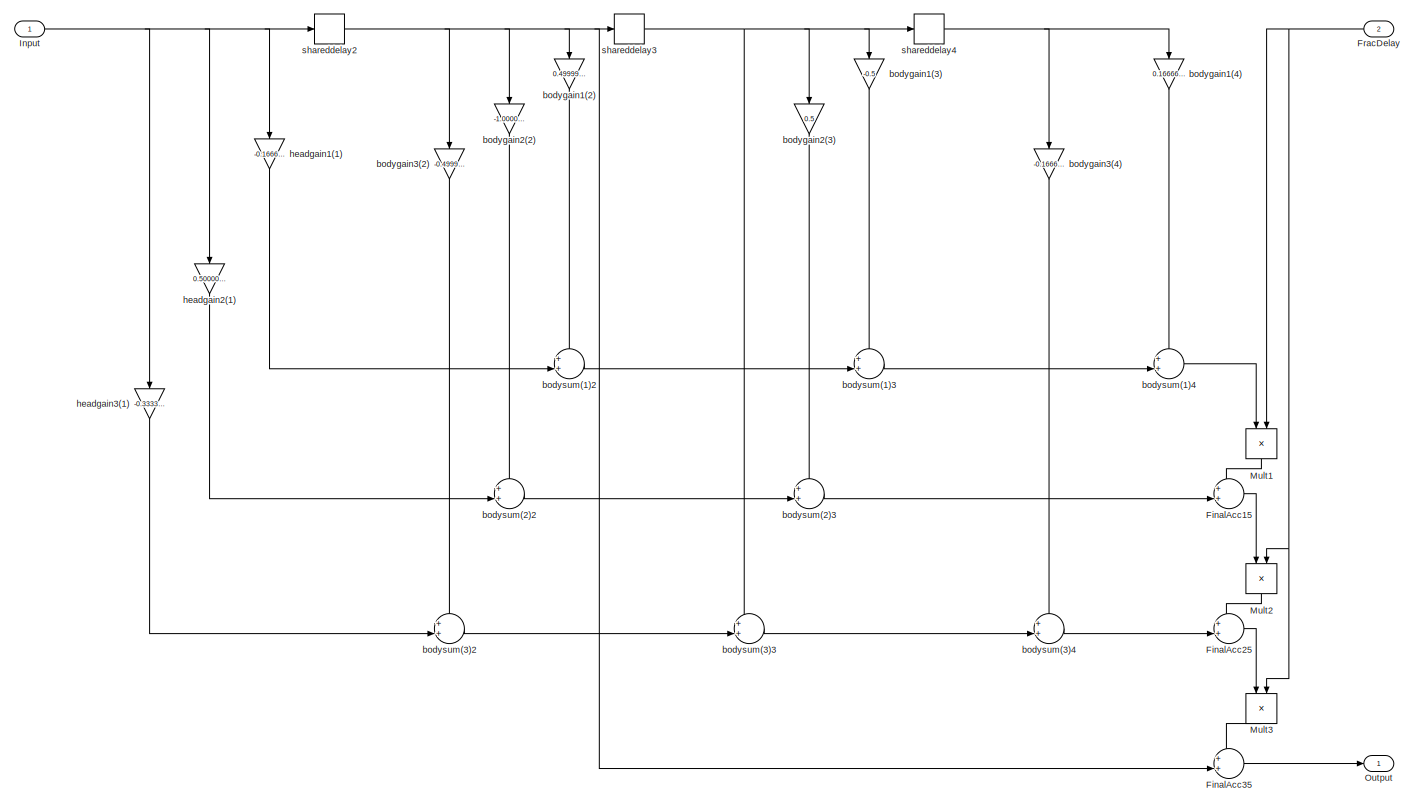
[diagram: Hfd - part 1/1, most of the canvas]
BLOCK [SubSystem] Hfd
  ErrorFcn = dspFilterRealizedInBasicElemsAlgLoopErrFcnCallback
  Ports = [2, 1]
  RequestExecContextInheritance = off
  Tag = FilterWizardSubSystem
  UserDataPersistent = on
BLOCK [Sum] Hfd/FinalAcc15
  Inputs = ++|
  OutDataTypeStr = Inherit: Same as first input
  Ports = [2, 1]
  RndMeth = Nearest
  SaturateOnIntegerOverflow = on
BLOCK [Sum] Hfd/FinalAcc25
  Inputs = ++|
  OutDataTypeStr = Inherit: Same as first input
  Ports = [2, 1]
  RndMeth = Nearest
  SaturateOnIntegerOverflow = on
BLOCK [Sum] Hfd/FinalAcc35
  Inputs = ++|
  OutDataTypeStr = Inherit: Same as first input
  Ports = [2, 1]
  RndMeth = Nearest
  SaturateOnIntegerOverflow = on
BLOCK [Inport] Hfd/FracDelay
  Port = 2
BLOCK [Inport] Hfd/Input
BLOCK [Product] Hfd/Mult1
  NameLocation = right
  OutDataTypeStr = Inherit: Same as first input
  Ports = [2, 1]
  RndMeth = Nearest
  SaturateOnIntegerOverflow = on
BLOCK [Product] Hfd/Mult2
  NameLocation = right
  OutDataTypeStr = Inherit: Same as first input
  Ports = [2, 1]
  RndMeth = Nearest
  SaturateOnIntegerOverflow = on
BLOCK [Product] Hfd/Mult3
  NameLocation = right
  OutDataTypeStr = Inherit: Same as first input
  Ports = [2, 1]
  RndMeth = Nearest
  SaturateOnIntegerOverflow = on
BLOCK [Outport] Hfd/Output
BLOCK [Gain] Hfd/bodygain1(2)
  Gain = 0.499999999999999944
  NameLocation = right
  OutDataTypeStr = Inherit: Same as input
  ParamDataTypeStr = double
  RndMeth = Nearest
  SaturateOnIntegerOverflow = on
BLOCK [Gain] Hfd/bodygain1(3)
  Gain = -0.5
  NameLocation = right
  OutDataTypeStr = Inherit: Same as input
  ParamDataTypeStr = double
  RndMeth = Nearest
  SaturateOnIntegerOverflow = on
BLOCK [Gain] Hfd/bodygain1(4)
  Gain = 0.166666666666666685
  NameLocation = right
  OutDataTypeStr = Inherit: Same as input
  ParamDataTypeStr = double
  RndMeth = Nearest
  SaturateOnIntegerOverflow = on
BLOCK [Gain] Hfd/bodygain2(2)
  Gain = -1.00000000000000022
  NameLocation = right
  OutDataTypeStr = Inherit: Same as input
  ParamDataTypeStr = double
  RndMeth = Nearest
  SaturateOnIntegerOverflow = on
BLOCK [Gain] Hfd/bodygain2(3)
  Gain = 0.5
  NameLocation = right
  OutDataTypeStr = Inherit: Same as input
  ParamDataTypeStr = double
  RndMeth = Nearest
  SaturateOnIntegerOverflow = on
BLOCK [Gain] Hfd/bodygain3(2)
  Gain = -0.49999999999999889
  NameLocation = right
  OutDataTypeStr = Inherit: Same as input
  ParamDataTypeStr = double
  RndMeth = Nearest
  SaturateOnIntegerOverflow = on
BLOCK [Gain] Hfd/bodygain3(4)
  Gain = -0.166666666666666408
  NameLocation = right
  OutDataTypeStr = Inherit: Same as input
  ParamDataTypeStr = double
  RndMeth = Nearest
  SaturateOnIntegerOverflow = on
BLOCK [Sum] Hfd/bodysum(1)2
  Inputs = ++|
  OutDataTypeStr = Inherit: Same as first input
  Ports = [2, 1]
  RndMeth = Nearest
  SaturateOnIntegerOverflow = on
BLOCK [Sum] Hfd/bodysum(1)3
  Inputs = ++|
  OutDataTypeStr = Inherit: Same as first input
  Ports = [2, 1]
  RndMeth = Nearest
  SaturateOnIntegerOverflow = on
BLOCK [Sum] Hfd/bodysum(1)4
  Inputs = ++|
  OutDataTypeStr = Inherit: Same as first input
  Ports = [2, 1]
  RndMeth = Nearest
  SaturateOnIntegerOverflow = on
BLOCK [Sum] Hfd/bodysum(2)2
  Inputs = ++|
  OutDataTypeStr = Inherit: Same as first input
  Ports = [2, 1]
  RndMeth = Nearest
  SaturateOnIntegerOverflow = on
BLOCK [Sum] Hfd/bodysum(2)3
  Inputs = ++|
  OutDataTypeStr = Inherit: Same as first input
  Ports = [2, 1]
  RndMeth = Nearest
  SaturateOnIntegerOverflow = on
BLOCK [Sum] Hfd/bodysum(3)2
  Inputs = ++|
  OutDataTypeStr = Inherit: Same as first input
  Ports = [2, 1]
  RndMeth = Nearest
  SaturateOnIntegerOverflow = on
BLOCK [Sum] Hfd/bodysum(3)3
  Inputs = ++|
  OutDataTypeStr = Inherit: Same as first input
  Ports = [2, 1]
  RndMeth = Nearest
  SaturateOnIntegerOverflow = on
BLOCK [Sum] Hfd/bodysum(3)4
  Inputs = ++|
  OutDataTypeStr = Inherit: Same as first input
  Ports = [2, 1]
  RndMeth = Nearest
  SaturateOnIntegerOverflow = on
BLOCK [Gain] Hfd/headgain1(1)
  Gain = -0.16666666666666663
  NameLocation = right
  OutDataTypeStr = Inherit: Same as input
  ParamDataTypeStr = double
  RndMeth = Nearest
  SaturateOnIntegerOverflow = on
BLOCK [Gain] Hfd/headgain2(1)
  Gain = 0.500000000000000111
  NameLocation = right
  OutDataTypeStr = Inherit: Same as input
  ParamDataTypeStr = double
  RndMeth = Nearest
  SaturateOnIntegerOverflow = on
BLOCK [Gain] Hfd/headgain3(1)
  Gain = -0.333333333333333592
  NameLocation = right
  OutDataTypeStr = Inherit: Same as input
  ParamDataTypeStr = double
  RndMeth = Nearest
  SaturateOnIntegerOverflow = on
BLOCK [Delay] Hfd/shareddelay2
  DelayLength = 1
  InitialCondition = 0
  InputPortMap = u0
  Ports = [1, 1]
BLOCK [Delay] Hfd/shareddelay3
  DelayLength = 1
  InitialCondition = 0
  InputPortMap = u0
  Ports = [1, 1]
BLOCK [Delay] Hfd/shareddelay4
  DelayLength = 1
  InitialCondition = 0
  InputPortMap = u0
  Ports = [1, 1]
BLOCK [Reference] Lowpass Filter  REF=dspfdesign/Lowpass Filter
  Ports = [1, 1]
  SourceBlock = dspfdesign/Lowpass Filter
  SourceProductBaseCode = DS
  SourceType = dsp.LowpassFilter
BLOCK [SubSystem] PolyPhaseFIR
  ErrorFcn = dspFilterRealizedInBasicElemsAlgLoopErrFcnCallback
  Ports = [1, 1]
  RequestExecContextInheritance = off
  Tag = FilterWizardSubSystem
  UserDataPersistent = on
BLOCK [Inport] PolyPhaseFIR/Input
BLOCK [SubSystem] PolyPhaseFIR/InterpSys
  Ports = [4, 1]
  RequestExecContextInheritance = off
  Tag = FilterWizardInterpolatorCommutator
BLOCK [Delay] PolyPhaseFIR/InterpSys/delay1
  DelayLength = 1
  InputPortMap = u0
  Ports = [1, 1]
BLOCK [Delay] PolyPhaseFIR/InterpSys/delay2
  InputPortMap = u0
  Ports = [1, 1]
BLOCK [Delay] PolyPhaseFIR/InterpSys/delay3
  DelayLength = 3
  InputPortMap = u0
  Ports = [1, 1]
BLOCK [Inport] PolyPhaseFIR/InterpSys/input1
BLOCK [Inport] PolyPhaseFIR/InterpSys/input2
  Port = 2
BLOCK [Inport] PolyPhaseFIR/InterpSys/input3
  Port = 3
BLOCK [Inport] PolyPhaseFIR/InterpSys/input4
  Port = 4
BLOCK [MultiPortSwitch] PolyPhaseFIR/InterpSys/multiswitch
  DataPortOrder = Zero-based contiguous
  InputSameDT = off
  Inputs = 4
  Ports = [5, 1]
  zeroidx = on
BLOCK [Outport] PolyPhaseFIR/InterpSys/output
BLOCK [Reference] PolyPhaseFIR/InterpSys/ringcounter  REF=simulink/Sources/Counter
Limited
  Ports = [0, 1]
  SourceBlock = simulink/Sources/Counter\nLimited
  SourceProductBaseCode = SL
  SourceType = Counter Limited
BLOCK [Reference] PolyPhaseFIR/InterpSys/upsamp1  REF=dspsigops/Upsample
  Ports = [1, 1]
  SourceBlock = dspsigops/Upsample
  SourceProductBaseCode = DS
  SourceType = Upsample
  UserDataPersistent = on
BLOCK [Reference] PolyPhaseFIR/InterpSys/upsamp2  REF=dspsigops/Upsample
  Ports = [1, 1]
  SourceBlock = dspsigops/Upsample
  SourceProductBaseCode = DS
  SourceType = Upsample
  UserDataPersistent = on
BLOCK [Reference] PolyPhaseFIR/InterpSys/upsamp3  REF=dspsigops/Upsample
  Ports = [1, 1]
  SourceBlock = dspsigops/Upsample
  SourceProductBaseCode = DS
  SourceType = Upsample
  UserDataPersistent = on
BLOCK [Reference] PolyPhaseFIR/InterpSys/upsamp4  REF=dspsigops/Upsample
  Ports = [1, 1]
  SourceBlock = dspsigops/Upsample
  SourceProductBaseCode = DS
  SourceType = Upsample
  UserDataPersistent = on
BLOCK [Outport] PolyPhaseFIR/Output
BLOCK [Gain] PolyPhaseFIR/bodygain1(2)
  Gain = 0.75
  NameLocation = right
  OutDataTypeStr = Inherit: Same as input
  ParamDataTypeStr = double
  RndMeth = Nearest
  SaturateOnIntegerOverflow = on
BLOCK [Gain] PolyPhaseFIR/bodygain2(2)
  Gain = 0.5
  NameLocation = right
  OutDataTypeStr = Inherit: Same as input
  ParamDataTypeStr = double
  RndMeth = Nearest
  SaturateOnIntegerOverflow = on
BLOCK [Gain] PolyPhaseFIR/bodygain3(2)
  Gain = 0.25
  NameLocation = right
  OutDataTypeStr = Inherit: Same as input
  ParamDataTypeStr = double
  RndMeth = Nearest
  SaturateOnIntegerOverflow = on
BLOCK [Sum] PolyPhaseFIR/bodysum(1)2
  Inputs = ++|
  OutDataTypeStr = Inherit: Same as first input
  Ports = [2, 1]
  RndMeth = Nearest
  SaturateOnIntegerOverflow = on
BLOCK [Sum] PolyPhaseFIR/bodysum(2)2
  Inputs = ++|
  OutDataTypeStr = Inherit: Same as first input
  Ports = [2, 1]
  RndMeth = Nearest
  SaturateOnIntegerOverflow = on
BLOCK [Sum] PolyPhaseFIR/bodysum(3)2
  Inputs = ++|
  OutDataTypeStr = Inherit: Same as first input
  Ports = [2, 1]
  RndMeth = Nearest
  SaturateOnIntegerOverflow = on
BLOCK [Gain] PolyPhaseFIR/headgain1(1)
  Gain = 0.25
  NameLocation = right
  OutDataTypeStr = Inherit: Same as input
  ParamDataTypeStr = double
  RndMeth = Nearest
  SaturateOnIntegerOverflow = on
BLOCK [Gain] PolyPhaseFIR/headgain2(1)
  Gain = 0.5
  NameLocation = right
  OutDataTypeStr = Inherit: Same as input
  ParamDataTypeStr = double
  RndMeth = Nearest
  SaturateOnIntegerOverflow = on
BLOCK [Gain] PolyPhaseFIR/headgain3(1)
  Gain = 0.75
  NameLocation = right
  OutDataTypeStr = Inherit: Same as input
  ParamDataTypeStr = double
  RndMeth = Nearest
  SaturateOnIntegerOverflow = on
BLOCK [Delay] PolyPhaseFIR/shareddelay2
  DelayLength = 1
  InitialCondition = 0
  InputPortMap = u0
  Ports = [1, 1]
BLOCK [Reference] Sine Wave  REF=dspsrcs4/Sine Wave
  Ports = [0, 1]
  SourceBlock = dspsrcs4/Sine Wave
  SourceProductBaseCode = DS
  SourceType = Sine Wave
BLOCK [Scope] Time Scope
  DefaultConfigurationName = spbscopes.TimeScopeBlockCfg
  Floating = off
  NumInputPorts = 2
  Ports = [2]
  ScopeSpecificationString = spbscopes.TimeScopeBlockCfg('CurrentConfiguration', extmgr.ConfigurationSet(extmgr.Configuration('Core','General UI',true),extmgr.Configuration('Core','Source UI',true),extmgr.Configuration('Sources','WiredSimulink',true),extmgr.Configuration('Visuals','Time Domain',true,'DisplayPropertyDefaults',struct('MinYLimReal','-1.25','MaxYLimReal','1.25','YLabelReal','Amplitude','MinYLimMag','0.00000','Max...<+1988ch>
  UserDataPersistent = on
BLOCK [Scope] Time Scope1
  DefaultConfigurationName = spbscopes.TimeScopeBlockCfg
  Floating = off
  NumInputPorts = 2
  Ports = [2]
  ScopeSpecificationString = spbscopes.TimeScopeBlockCfg('CurrentConfiguration', extmgr.ConfigurationSet(extmgr.Configuration('Core','General UI',true),extmgr.Configuration('Core','Source UI',true),extmgr.Configuration('Sources','WiredSimulink',true,'DataLoggingVariableName','ScopeData1'),extmgr.Configuration('Visuals','Time Domain',true,'DisplayPropertyDefaults',struct('MinYLimReal','-1.25','MaxYLimReal','1.25','YLabelReal',...<+1697ch>
  UserDataPersistent = on
BLOCK [Scope] Time Scope2
  DefaultConfigurationName = spbscopes.TimeScopeBlockCfg
  Floating = off
  NumInputPorts = 2
  Ports = [2]
  ScopeSpecificationString = spbscopes.TimeScopeBlockCfg('CurrentConfiguration', extmgr.ConfigurationSet(extmgr.Configuration('Core','General UI',true),extmgr.Configuration('Core','Source UI',true),extmgr.Configuration('Sources','WiredSimulink',true,'DataLoggingVariableName','ScopeData2'),extmgr.Configuration('Visuals','Time Domain',true,'DisplayPropertyDefaults',struct('MinYLimReal','-1.25','MaxYLimReal','1.25','YLabelReal',...<+1712ch>
  UserDataPersistent = on
BLOCK [Scope] Time Scope3
  DefaultConfigurationName = spbscopes.TimeScopeBlockCfg
  Floating = off
  NumInputPorts = 2
  Ports = [2]
  ScopeSpecificationString = spbscopes.TimeScopeBlockCfg('CurrentConfiguration', extmgr.ConfigurationSet(extmgr.Configuration('Core','General UI',true),extmgr.Configuration('Core','Source UI',true),extmgr.Configuration('Sources','WiredSimulink',true,'DataLoggingVariableName','ScopeData3'),extmgr.Configuration('Visuals','Time Domain',true,'DisplayPropertyDefaults',struct('MinYLimReal','-4.99998','MaxYLimReal','4.99986','YLabel...<+1742ch>
  UserDataPersistent = on
BLOCK [Scope] Time Scope4
  DefaultConfigurationName = spbscopes.TimeScopeBlockCfg
  Floating = off
  NumInputPorts = 2
  Ports = [2]
  ScopeSpecificationString = spbscopes.TimeScopeBlockCfg('CurrentConfiguration', extmgr.ConfigurationSet(extmgr.Configuration('Core','General UI',true),extmgr.Configuration('Core','Source UI',true),extmgr.Configuration('Sources','WiredSimulink',true,'DataLoggingVariableName','ScopeData4'),extmgr.Configuration('Visuals','Time Domain',true,'DisplayPropertyDefaults',struct('MinYLimReal','-1.25','MaxYLimReal','1.25','YLabelReal',...<+1721ch>
  UserDataPersistent = on
BLOCK [Reference] Upsample  REF=dspsigops/Upsample
  Ports = [1, 1]
  SourceBlock = dspsigops/Upsample
  SourceProductBaseCode = DS
  SourceType = Upsample
  UserDataPersistent = on
NET CICInterpolator/CombCast2:1 -> CICInterpolator/CombDelay2:1, CICInterpolator/CombSum2:1
LINE CICInterpolator/CombDelay2:1 -> CICInterpolator/CombSum2:2
LINE CICInterpolator/CombDelay3:1 -> CICInterpolator/CombSum3:2
NET CICInterpolator/CombSum2:1 -> CICInterpolator/CombDelay3:1, CICInterpolator/CombSum3:1
LINE CICInterpolator/CombSum3:1 -> CICInterpolator/Up Sample:1
LINE CICInterpolator/ConvertIn:1 -> CICInterpolator/CombCast2:1
LINE CICInterpolator/ConvertOut:1 -> CICInterpolator/Output:1
LINE CICInterpolator/Input:1 -> CICInterpolator/ConvertIn:1
NET CICInterpolator/IntDelay5:1 -> CICInterpolator/IntSum5:2, CICInterpolator/IntSum6:1
NET CICInterpolator/IntDelay6:1 -> CICInterpolator/ConvertOut:1, CICInterpolator/IntSum6:2
LINE CICInterpolator/IntSum5:1 -> CICInterpolator/IntDelay5:1
LINE CICInterpolator/IntSum6:1 -> CICInterpolator/IntDelay6:1
LINE CICInterpolator/Up Sample:1 -> CICInterpolator/IntSum5:1
LINE CICInterpolator:1 -> Time Scope3:2
LINE Constant:1 -> Hfd:2
NET Converter_3_by_4/Delay10:1 -> Converter_3_by_4/Delay11:1, Converter_3_by_4/RT10:1
NET Converter_3_by_4/Delay11:1 -> Converter_3_by_4/Delay12:1, Converter_3_by_4/RT11:1
NET Converter_3_by_4/Delay12:1 -> Converter_3_by_4/Delay13:1, Converter_3_by_4/RT12:1
NET Converter_3_by_4/Delay13:1 -> Converter_3_by_4/Delay14:1, Converter_3_by_4/RT13:1
NET Converter_3_by_4/Delay14:1 -> Converter_3_by_4/Delay15:1, Converter_3_by_4/RT14:1
NET Converter_3_by_4/Delay15:1 -> Converter_3_by_4/Delay16:1, Converter_3_by_4/RT15:1
NET Converter_3_by_4/Delay16:1 -> Converter_3_by_4/Delay17:1, Converter_3_by_4/RT16:1
NET Converter_3_by_4/Delay17:1 -> Converter_3_by_4/Delay18:1, Converter_3_by_4/RT17:1
NET Converter_3_by_4/Delay18:1 -> Converter_3_by_4/Delay19:1, Converter_3_by_4/RT18:1
NET Converter_3_by_4/Delay19:1 -> Converter_3_by_4/Delay20:1, Converter_3_by_4/RT19:1
NET Converter_3_by_4/Delay20:1 -> Converter_3_by_4/Delay21:1, Converter_3_by_4/RT20:1
NET Converter_3_by_4/Delay21:1 -> Converter_3_by_4/Delay22:1, Converter_3_by_4/RT21:1
NET Converter_3_by_4/Delay22:1 -> Converter_3_by_4/Delay23:1, Converter_3_by_4/RT22:1
NET Converter_3_by_4/Delay23:1 -> Converter_3_by_4/Delay24:1, Converter_3_by_4/RT23:1
LINE Converter_3_by_4/Delay24:1 -> Converter_3_by_4/RT24:1
NET Converter_3_by_4/Delay2:1 -> Converter_3_by_4/Delay3:1, Converter_3_by_4/RT2:1
NET Converter_3_by_4/Delay3:1 -> Converter_3_by_4/Delay4:1, Converter_3_by_4/RT3:1
NET Converter_3_by_4/Delay4:1 -> Converter_3_by_4/Delay5:1, Converter_3_by_4/RT4:1
NET Converter_3_by_4/Delay5:1 -> Converter_3_by_4/Delay6:1, Converter_3_by_4/RT5:1
NET Converter_3_by_4/Delay6:1 -> Converter_3_by_4/Delay7:1, Converter_3_by_4/RT6:1
NET Converter_3_by_4/Delay7:1 -> Converter_3_by_4/Delay8:1, Converter_3_by_4/RT7:1
NET Converter_3_by_4/Delay8:1 -> Converter_3_by_4/Delay9:1, Converter_3_by_4/RT8:1
NET Converter_3_by_4/Delay9:1 -> Converter_3_by_4/Delay10:1, Converter_3_by_4/RT9:1
LINE Converter_3_by_4/FirsrcSys/input1:1 -> Converter_3_by_4/FirsrcSys/multiswitch:2
LINE Converter_3_by_4/FirsrcSys/input2:1 -> Converter_3_by_4/FirsrcSys/multiswitch:3
LINE Converter_3_by_4/FirsrcSys/input3:1 -> Converter_3_by_4/FirsrcSys/multiswitch:4
LINE Converter_3_by_4/FirsrcSys/input4:1 -> Converter_3_by_4/FirsrcSys/multiswitch:5
LINE Converter_3_by_4/FirsrcSys/multiswitch:1 -> Converter_3_by_4/FirsrcSys/output:1
LINE Converter_3_by_4/FirsrcSys/phaseselector:1 -> Converter_3_by_4/FirsrcSys/multiswitch:1
LINE Converter_3_by_4/FirsrcSys:1 -> Converter_3_by_4/Output:1
NET Converter_3_by_4/Input:1 -> Converter_3_by_4/Delay2:1, Converter_3_by_4/RT1:1
NET Converter_3_by_4/RT10:1 -> Converter_3_by_4/p2(10):1, Converter_3_by_4/p3(10):1, Converter_3_by_4/p4(10):1
NET Converter_3_by_4/RT11:1 -> Converter_3_by_4/p2(11):1, Converter_3_by_4/p3(11):1, Converter_3_by_4/p4(11):1
NET Converter_3_by_4/RT12:1 -> Converter_3_by_4/p2(12):1, Converter_3_by_4/p3(12):1, Converter_3_by_4/p4(12):1
NET Converter_3_by_4/RT13:1 -> Converter_3_by_4/FirsrcSys:1, Converter_3_by_4/p2(13):1, Converter_3_by_4/p3(13):1, Converter_3_by_4/p4(13):1
NET Converter_3_by_4/RT14:1 -> Converter_3_by_4/p2(14):1, Converter_3_by_4/p3(14):1, Converter_3_by_4/p4(14):1
NET Converter_3_by_4/RT15:1 -> Converter_3_by_4/p2(15):1, Converter_3_by_4/p3(15):1, Converter_3_by_4/p4(15):1
NET Converter_3_by_4/RT16:1 -> Converter_3_by_4/p2(16):1, Converter_3_by_4/p3(16):1, Converter_3_by_4/p4(16):1
NET Converter_3_by_4/RT17:1 -> Converter_3_by_4/p2(17):1, Converter_3_by_4/p3(17):1, Converter_3_by_4/p4(17):1
NET Converter_3_by_4/RT18:1 -> Converter_3_by_4/p2(18):1, Converter_3_by_4/p3(18):1, Converter_3_by_4/p4(18):1
NET Converter_3_by_4/RT19:1 -> Converter_3_by_4/p2(19):1, Converter_3_by_4/p3(19):1, Converter_3_by_4/p4(19):1
NET Converter_3_by_4/RT1:1 -> Converter_3_by_4/p2(1):1, Converter_3_by_4/p3(1):1, Converter_3_by_4/p4(1):1
NET Converter_3_by_4/RT20:1 -> Converter_3_by_4/p2(20):1, Converter_3_by_4/p3(20):1, Converter_3_by_4/p4(20):1
NET Converter_3_by_4/RT21:1 -> Converter_3_by_4/p2(21):1, Converter_3_by_4/p3(21):1, Converter_3_by_4/p4(21):1
NET Converter_3_by_4/RT22:1 -> Converter_3_by_4/p2(22):1, Converter_3_by_4/p3(22):1, Converter_3_by_4/p4(22):1
NET Converter_3_by_4/RT23:1 -> Converter_3_by_4/p2(23):1, Converter_3_by_4/p3(23):1, Converter_3_by_4/p4(23):1
NET Converter_3_by_4/RT24:1 -> Converter_3_by_4/p2(24):1, Converter_3_by_4/p3(24):1, Converter_3_by_4/p4(24):1
NET Converter_3_by_4/RT2:1 -> Converter_3_by_4/p2(2):1, Converter_3_by_4/p3(2):1, Converter_3_by_4/p4(2):1
NET Converter_3_by_4/RT3:1 -> Converter_3_by_4/p2(3):1, Converter_3_by_4/p3(3):1, Converter_3_by_4/p4(3):1
NET Converter_3_by_4/RT4:1 -> Converter_3_by_4/p2(4):1, Converter_3_by_4/p3(4):1, Converter_3_by_4/p4(4):1
NET Converter_3_by_4/RT5:1 -> Converter_3_by_4/p2(5):1, Converter_3_by_4/p3(5):1, Converter_3_by_4/p4(5):1
NET Converter_3_by_4/RT6:1 -> Converter_3_by_4/p2(6):1, Converter_3_by_4/p3(6):1, Converter_3_by_4/p4(6):1
NET Converter_3_by_4/RT7:1 -> Converter_3_by_4/p2(7):1, Converter_3_by_4/p3(7):1, Converter_3_by_4/p4(7):1
NET Converter_3_by_4/RT8:1 -> Converter_3_by_4/p2(8):1, Converter_3_by_4/p3(8):1, Converter_3_by_4/p4(8):1
NET Converter_3_by_4/RT9:1 -> Converter_3_by_4/p2(9):1, Converter_3_by_4/p3(9):1, Converter_3_by_4/p4(9):1
LINE Converter_3_by_4/p2(1):1 -> Converter_3_by_4/sum62:2
LINE Converter_3_by_4/p2(10):1 -> Converter_3_by_4/sum610:1
LINE Converter_3_by_4/p2(11):1 -> Converter_3_by_4/sum611:1
LINE Converter_3_by_4/p2(12):1 -> Converter_3_by_4/sum612:1
LINE Converter_3_by_4/p2(13):1 -> Converter_3_by_4/sum613:1
LINE Converter_3_by_4/p2(14):1 -> Converter_3_by_4/sum614:1
LINE Converter_3_by_4/p2(15):1 -> Converter_3_by_4/sum615:1
LINE Converter_3_by_4/p2(16):1 -> Converter_3_by_4/sum616:1
LINE Converter_3_by_4/p2(17):1 -> Converter_3_by_4/sum617:1
LINE Converter_3_by_4/p2(18):1 -> Converter_3_by_4/sum618:1
LINE Converter_3_by_4/p2(19):1 -> Converter_3_by_4/sum619:1
LINE Converter_3_by_4/p2(2):1 -> Converter_3_by_4/sum62:1
LINE Converter_3_by_4/p2(20):1 -> Converter_3_by_4/sum620:1
LINE Converter_3_by_4/p2(21):1 -> Converter_3_by_4/sum621:1
LINE Converter_3_by_4/p2(22):1 -> Converter_3_by_4/sum622:1
LINE Converter_3_by_4/p2(23):1 -> Converter_3_by_4/sum623:1
LINE Converter_3_by_4/p2(24):1 -> Converter_3_by_4/sum624:1
LINE Converter_3_by_4/p2(3):1 -> Converter_3_by_4/sum63:1
LINE Converter_3_by_4/p2(4):1 -> Converter_3_by_4/sum64:1
LINE Converter_3_by_4/p2(5):1 -> Converter_3_by_4/sum65:1
LINE Converter_3_by_4/p2(6):1 -> Converter_3_by_4/sum66:1
LINE Converter_3_by_4/p2(7):1 -> Converter_3_by_4/sum67:1
LINE Converter_3_by_4/p2(8):1 -> Converter_3_by_4/sum68:1
LINE Converter_3_by_4/p2(9):1 -> Converter_3_by_4/sum69:1
LINE Converter_3_by_4/p3(1):1 -> Converter_3_by_4/sum72:2
LINE Converter_3_by_4/p3(10):1 -> Converter_3_by_4/sum710:1
LINE Converter_3_by_4/p3(11):1 -> Converter_3_by_4/sum711:1
LINE Converter_3_by_4/p3(12):1 -> Converter_3_by_4/sum712:1
LINE Converter_3_by_4/p3(13):1 -> Converter_3_by_4/sum713:1
LINE Converter_3_by_4/p3(14):1 -> Converter_3_by_4/sum714:1
LINE Converter_3_by_4/p3(15):1 -> Converter_3_by_4/sum715:1
LINE Converter_3_by_4/p3(16):1 -> Converter_3_by_4/sum716:1
LINE Converter_3_by_4/p3(17):1 -> Converter_3_by_4/sum717:1
LINE Converter_3_by_4/p3(18):1 -> Converter_3_by_4/sum718:1
LINE Converter_3_by_4/p3(19):1 -> Converter_3_by_4/sum719:1
LINE Converter_3_by_4/p3(2):1 -> Converter_3_by_4/sum72:1
LINE Converter_3_by_4/p3(20):1 -> Converter_3_by_4/sum720:1
LINE Converter_3_by_4/p3(21):1 -> Converter_3_by_4/sum721:1
LINE Converter_3_by_4/p3(22):1 -> Converter_3_by_4/sum722:1
LINE Converter_3_by_4/p3(23):1 -> Converter_3_by_4/sum723:1
LINE Converter_3_by_4/p3(24):1 -> Converter_3_by_4/sum724:1
LINE Converter_3_by_4/p3(3):1 -> Converter_3_by_4/sum73:1
LINE Converter_3_by_4/p3(4):1 -> Converter_3_by_4/sum74:1
LINE Converter_3_by_4/p3(5):1 -> Converter_3_by_4/sum75:1
LINE Converter_3_by_4/p3(6):1 -> Converter_3_by_4/sum76:1
LINE Converter_3_by_4/p3(7):1 -> Converter_3_by_4/sum77:1
LINE Converter_3_by_4/p3(8):1 -> Converter_3_by_4/sum78:1
LINE Converter_3_by_4/p3(9):1 -> Converter_3_by_4/sum79:1
LINE Converter_3_by_4/p4(1):1 -> Converter_3_by_4/sum82:2
LINE Converter_3_by_4/p4(10):1 -> Converter_3_by_4/sum810:1
LINE Converter_3_by_4/p4(11):1 -> Converter_3_by_4/sum811:1
LINE Converter_3_by_4/p4(12):1 -> Converter_3_by_4/sum812:1
LINE Converter_3_by_4/p4(13):1 -> Converter_3_by_4/sum813:1
LINE Converter_3_by_4/p4(14):1 -> Converter_3_by_4/sum814:1
LINE Converter_3_by_4/p4(15):1 -> Converter_3_by_4/sum815:1
LINE Converter_3_by_4/p4(16):1 -> Converter_3_by_4/sum816:1
LINE Converter_3_by_4/p4(17):1 -> Converter_3_by_4/sum817:1
LINE Converter_3_by_4/p4(18):1 -> Converter_3_by_4/sum818:1
LINE Converter_3_by_4/p4(19):1 -> Converter_3_by_4/sum819:1
LINE Converter_3_by_4/p4(2):1 -> Converter_3_by_4/sum82:1
LINE Converter_3_by_4/p4(20):1 -> Converter_3_by_4/sum820:1
LINE Converter_3_by_4/p4(21):1 -> Converter_3_by_4/sum821:1
LINE Converter_3_by_4/p4(22):1 -> Converter_3_by_4/sum822:1
LINE Converter_3_by_4/p4(23):1 -> Converter_3_by_4/sum823:1
LINE Converter_3_by_4/p4(24):1 -> Converter_3_by_4/sum824:1
LINE Converter_3_by_4/p4(3):1 -> Converter_3_by_4/sum83:1
LINE Converter_3_by_4/p4(4):1 -> Converter_3_by_4/sum84:1
LINE Converter_3_by_4/p4(5):1 -> Converter_3_by_4/sum85:1
LINE Converter_3_by_4/p4(6):1 -> Converter_3_by_4/sum86:1
LINE Converter_3_by_4/p4(7):1 -> Converter_3_by_4/sum87:1
LINE Converter_3_by_4/p4(8):1 -> Converter_3_by_4/sum88:1
LINE Converter_3_by_4/p4(9):1 -> Converter_3_by_4/sum89:1
LINE Converter_3_by_4/sum610:1 -> Converter_3_by_4/sum611:2
LINE Converter_3_by_4/sum611:1 -> Converter_3_by_4/sum612:2
LINE Converter_3_by_4/sum612:1 -> Converter_3_by_4/sum613:2
LINE Converter_3_by_4/sum613:1 -> Converter_3_by_4/sum614:2
LINE Converter_3_by_4/sum614:1 -> Converter_3_by_4/sum615:2
LINE Converter_3_by_4/sum615:1 -> Converter_3_by_4/sum616:2
LINE Converter_3_by_4/sum616:1 -> Converter_3_by_4/sum617:2
LINE Converter_3_by_4/sum617:1 -> Converter_3_by_4/sum618:2
LINE Converter_3_by_4/sum618:1 -> Converter_3_by_4/sum619:2
LINE Converter_3_by_4/sum619:1 -> Converter_3_by_4/sum620:2
LINE Converter_3_by_4/sum620:1 -> Converter_3_by_4/sum621:2
LINE Converter_3_by_4/sum621:1 -> Converter_3_by_4/sum622:2
LINE Converter_3_by_4/sum622:1 -> Converter_3_by_4/sum623:2
LINE Converter_3_by_4/sum623:1 -> Converter_3_by_4/sum624:2
LINE Converter_3_by_4/sum624:1 -> Converter_3_by_4/FirsrcSys:2
LINE Converter_3_by_4/sum62:1 -> Converter_3_by_4/sum63:2
LINE Converter_3_by_4/sum63:1 -> Converter_3_by_4/sum64:2
LINE Converter_3_by_4/sum64:1 -> Converter_3_by_4/sum65:2
LINE Converter_3_by_4/sum65:1 -> Converter_3_by_4/sum66:2
LINE Converter_3_by_4/sum66:1 -> Converter_3_by_4/sum67:2
LINE Converter_3_by_4/sum67:1 -> Converter_3_by_4/sum68:2
LINE Converter_3_by_4/sum68:1 -> Converter_3_by_4/sum69:2
LINE Converter_3_by_4/sum69:1 -> Converter_3_by_4/sum610:2
LINE Converter_3_by_4/sum710:1 -> Converter_3_by_4/sum711:2
LINE Converter_3_by_4/sum711:1 -> Converter_3_by_4/sum712:2
LINE Converter_3_by_4/sum712:1 -> Converter_3_by_4/sum713:2
LINE Converter_3_by_4/sum713:1 -> Converter_3_by_4/sum714:2
LINE Converter_3_by_4/sum714:1 -> Converter_3_by_4/sum715:2
LINE Converter_3_by_4/sum715:1 -> Converter_3_by_4/sum716:2
LINE Converter_3_by_4/sum716:1 -> Converter_3_by_4/sum717:2
LINE Converter_3_by_4/sum717:1 -> Converter_3_by_4/sum718:2
LINE Converter_3_by_4/sum718:1 -> Converter_3_by_4/sum719:2
LINE Converter_3_by_4/sum719:1 -> Converter_3_by_4/sum720:2
LINE Converter_3_by_4/sum720:1 -> Converter_3_by_4/sum721:2
LINE Converter_3_by_4/sum721:1 -> Converter_3_by_4/sum722:2
LINE Converter_3_by_4/sum722:1 -> Converter_3_by_4/sum723:2
LINE Converter_3_by_4/sum723:1 -> Converter_3_by_4/sum724:2
LINE Converter_3_by_4/sum724:1 -> Converter_3_by_4/FirsrcSys:3
LINE Converter_3_by_4/sum72:1 -> Converter_3_by_4/sum73:2
LINE Converter_3_by_4/sum73:1 -> Converter_3_by_4/sum74:2
LINE Converter_3_by_4/sum74:1 -> Converter_3_by_4/sum75:2
LINE Converter_3_by_4/sum75:1 -> Converter_3_by_4/sum76:2
LINE Converter_3_by_4/sum76:1 -> Converter_3_by_4/sum77:2
LINE Converter_3_by_4/sum77:1 -> Converter_3_by_4/sum78:2
LINE Converter_3_by_4/sum78:1 -> Converter_3_by_4/sum79:2
LINE Converter_3_by_4/sum79:1 -> Converter_3_by_4/sum710:2
LINE Converter_3_by_4/sum810:1 -> Converter_3_by_4/sum811:2
LINE Converter_3_by_4/sum811:1 -> Converter_3_by_4/sum812:2
LINE Converter_3_by_4/sum812:1 -> Converter_3_by_4/sum813:2
LINE Converter_3_by_4/sum813:1 -> Converter_3_by_4/sum814:2
LINE Converter_3_by_4/sum814:1 -> Converter_3_by_4/sum815:2
LINE Converter_3_by_4/sum815:1 -> Converter_3_by_4/sum816:2
LINE Converter_3_by_4/sum816:1 -> Converter_3_by_4/sum817:2
LINE Converter_3_by_4/sum817:1 -> Converter_3_by_4/sum818:2
LINE Converter_3_by_4/sum818:1 -> Converter_3_by_4/sum819:2
LINE Converter_3_by_4/sum819:1 -> Converter_3_by_4/sum820:2
LINE Converter_3_by_4/sum820:1 -> Converter_3_by_4/sum821:2
LINE Converter_3_by_4/sum821:1 -> Converter_3_by_4/sum822:2
LINE Converter_3_by_4/sum822:1 -> Converter_3_by_4/sum823:2
LINE Converter_3_by_4/sum823:1 -> Converter_3_by_4/sum824:2
LINE Converter_3_by_4/sum824:1 -> Converter_3_by_4/FirsrcSys:4
LINE Converter_3_by_4/sum82:1 -> Converter_3_by_4/sum83:2
LINE Converter_3_by_4/sum83:1 -> Converter_3_by_4/sum84:2
LINE Converter_3_by_4/sum84:1 -> Converter_3_by_4/sum85:2
LINE Converter_3_by_4/sum85:1 -> Converter_3_by_4/sum86:2
LINE Converter_3_by_4/sum86:1 -> Converter_3_by_4/sum87:2
LINE Converter_3_by_4/sum87:1 -> Converter_3_by_4/sum88:2
LINE Converter_3_by_4/sum88:1 -> Converter_3_by_4/sum89:2
LINE Converter_3_by_4/sum89:1 -> Converter_3_by_4/sum810:2
LINE Converter_3_by_4:1 -> Time Scope1:2
LINE Delay:1 -> Time Scope:2
LINE Gain:1 -> Time Scope2:2
LINE Hfd/FinalAcc15:1 -> Hfd/Mult2:1
LINE Hfd/FinalAcc25:1 -> Hfd/Mult3:1
LINE Hfd/FinalAcc35:1 -> Hfd/Output:1
NET Hfd/FracDelay:1 -> Hfd/Mult1:2, Hfd/Mult2:2, Hfd/Mult3:2
NET Hfd/Input:1 -> Hfd/headgain1(1):1, Hfd/headgain2(1):1, Hfd/headgain3(1):1, Hfd/shareddelay2:1
LINE Hfd/Mult1:1 -> Hfd/FinalAcc15:1
LINE Hfd/Mult2:1 -> Hfd/FinalAcc25:1
LINE Hfd/Mult3:1 -> Hfd/FinalAcc35:1
LINE Hfd/bodygain1(2):1 -> Hfd/bodysum(1)2:1
LINE Hfd/bodygain1(3):1 -> Hfd/bodysum(1)3:1
LINE Hfd/bodygain1(4):1 -> Hfd/bodysum(1)4:1
LINE Hfd/bodygain2(2):1 -> Hfd/bodysum(2)2:1
LINE Hfd/bodygain2(3):1 -> Hfd/bodysum(2)3:1
LINE Hfd/bodygain3(2):1 -> Hfd/bodysum(3)2:1
LINE Hfd/bodygain3(4):1 -> Hfd/bodysum(3)4:1
LINE Hfd/bodysum(1)2:1 -> Hfd/bodysum(1)3:2
LINE Hfd/bodysum(1)3:1 -> Hfd/bodysum(1)4:2
LINE Hfd/bodysum(1)4:1 -> Hfd/Mult1:1
LINE Hfd/bodysum(2)2:1 -> Hfd/bodysum(2)3:2
LINE Hfd/bodysum(2)3:1 -> Hfd/FinalAcc15:2
LINE Hfd/bodysum(3)2:1 -> Hfd/bodysum(3)3:2
LINE Hfd/bodysum(3)3:1 -> Hfd/bodysum(3)4:2
LINE Hfd/bodysum(3)4:1 -> Hfd/FinalAcc25:2
LINE Hfd/headgain1(1):1 -> Hfd/bodysum(1)2:2
LINE Hfd/headgain2(1):1 -> Hfd/bodysum(2)2:2
LINE Hfd/headgain3(1):1 -> Hfd/bodysum(3)2:2
NET Hfd/shareddelay2:1 -> Hfd/FinalAcc35:2, Hfd/bodygain1(2):1, Hfd/bodygain2(2):1, Hfd/bodygain3(2):1, Hfd/shareddelay3:1
NET Hfd/shareddelay3:1 -> Hfd/bodygain1(3):1, Hfd/bodygain2(3):1, Hfd/bodysum(3)3:1, Hfd/shareddelay4:1
NET Hfd/shareddelay4:1 -> Hfd/bodygain1(4):1, Hfd/bodygain3(4):1
LINE Hfd:1 -> Time Scope:1
LINE Lowpass Filter:1 -> Gain:1
NET PolyPhaseFIR/Input:1 -> PolyPhaseFIR/InterpSys:4, PolyPhaseFIR/headgain1(1):1, PolyPhaseFIR/headgain2(1):1, PolyPhaseFIR/headgain3(1):1, PolyPhaseFIR/shareddelay2:1
LINE PolyPhaseFIR/InterpSys/delay1:1 -> PolyPhaseFIR/InterpSys/multiswitch:3
LINE PolyPhaseFIR/InterpSys/delay2:1 -> PolyPhaseFIR/InterpSys/multiswitch:4
LINE PolyPhaseFIR/InterpSys/delay3:1 -> PolyPhaseFIR/InterpSys/multiswitch:5
LINE PolyPhaseFIR/InterpSys/input1:1 -> PolyPhaseFIR/InterpSys/upsamp1:1
LINE PolyPhaseFIR/InterpSys/input2:1 -> PolyPhaseFIR/InterpSys/upsamp2:1
LINE PolyPhaseFIR/InterpSys/input3:1 -> PolyPhaseFIR/InterpSys/upsamp3:1
LINE PolyPhaseFIR/InterpSys/input4:1 -> PolyPhaseFIR/InterpSys/upsamp4:1
LINE PolyPhaseFIR/InterpSys/multiswitch:1 -> PolyPhaseFIR/InterpSys/output:1
LINE PolyPhaseFIR/InterpSys/ringcounter:1 -> PolyPhaseFIR/InterpSys/multiswitch:1
LINE PolyPhaseFIR/InterpSys/upsamp1:1 -> PolyPhaseFIR/InterpSys/multiswitch:2
LINE PolyPhaseFIR/InterpSys/upsamp2:1 -> PolyPhaseFIR/InterpSys/delay1:1
LINE PolyPhaseFIR/InterpSys/upsamp3:1 -> PolyPhaseFIR/InterpSys/delay2:1
LINE PolyPhaseFIR/InterpSys/upsamp4:1 -> PolyPhaseFIR/InterpSys/delay3:1
LINE PolyPhaseFIR/InterpSys:1 -> PolyPhaseFIR/Output:1
LINE PolyPhaseFIR/bodygain1(2):1 -> PolyPhaseFIR/bodysum(1)2:1
LINE PolyPhaseFIR/bodygain2(2):1 -> PolyPhaseFIR/bodysum(2)2:1
LINE PolyPhaseFIR/bodygain3(2):1 -> PolyPhaseFIR/bodysum(3)2:1
LINE PolyPhaseFIR/bodysum(1)2:1 -> PolyPhaseFIR/InterpSys:1
LINE PolyPhaseFIR/bodysum(2)2:1 -> PolyPhaseFIR/InterpSys:2
LINE PolyPhaseFIR/bodysum(3)2:1 -> PolyPhaseFIR/InterpSys:3
LINE PolyPhaseFIR/headgain1(1):1 -> PolyPhaseFIR/bodysum(1)2:2
LINE PolyPhaseFIR/headgain2(1):1 -> PolyPhaseFIR/bodysum(2)2:2
LINE PolyPhaseFIR/headgain3(1):1 -> PolyPhaseFIR/bodysum(3)2:2
NET PolyPhaseFIR/shareddelay2:1 -> PolyPhaseFIR/bodygain1(2):1, PolyPhaseFIR/bodygain2(2):1, PolyPhaseFIR/bodygain3(2):1
LINE PolyPhaseFIR:1 -> Time Scope4:2
NET Sine Wave:1 -> CICInterpolator:1, Converter_3_by_4:1, Delay:1, Hfd:1, PolyPhaseFIR:1, Time Scope1:1, Time Scope3:1, Time Scope4:1, Upsample:1
NET Upsample:1 -> Lowpass Filter:1, Time Scope2:1
note: NET lines group one-source signal fan-out (src -> all destinations, sorted); 1:1 wires keep LINE
